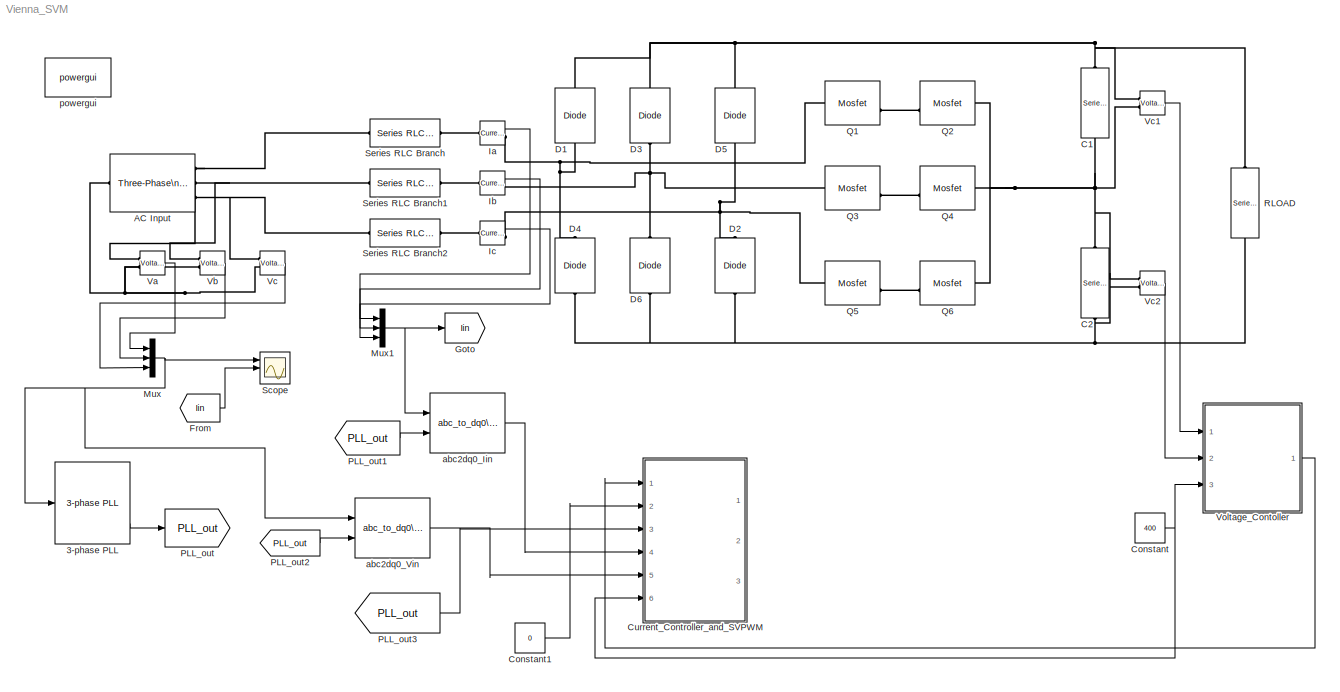
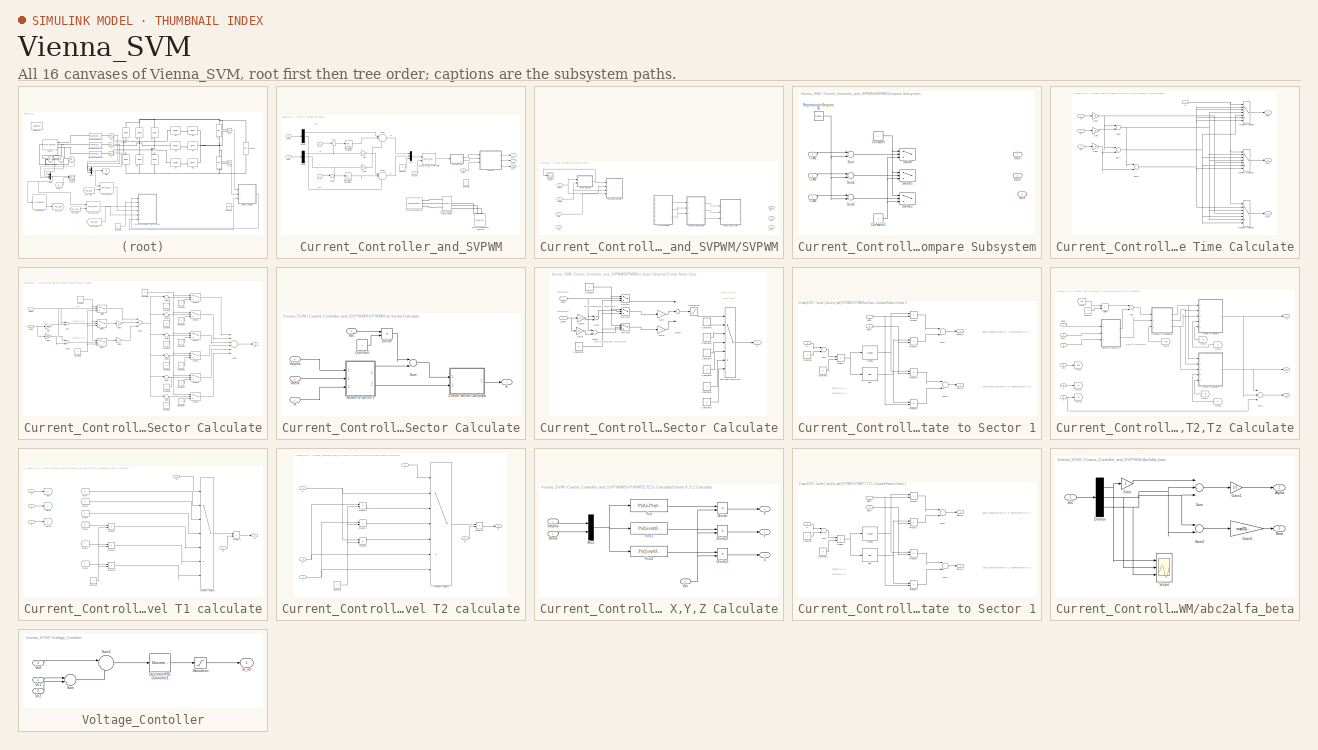
[diagram: thumbnail index - all 16 canvases of the model, root first then tree order]
MODEL Vienna_SVM
KIND model
BLOCK [Reference] 3-phase PLL  REF=powerlib_extras/Control \nBlocks/3-phase PLL
  AGC = off
  DialogController = POWERSYS.PowerSysDialog
  FunctionWithSeparateData = off
  GeneratePreprocessorConditionals = off
  ParK = [ 180 3200 1 ]
  Par_Init = [0 50]
  Ports = [1, 3]
  RTWMemSecDataConstants = Inherit from model
  RTWMemSecDataInternal = Inherit from model
  RTWMemSecDataParameters = Inherit from model
  RTWMemSecFuncExecute = Inherit from model
  RTWMemSecFuncInitTerm = Inherit from model
  SID = 34
  ShowPortLabels = FromPortIcon
  SourceBlock = powerlib_extras/Control \nBlocks/3-phase PLL
  SourceType = 3-phase PLL
  SystemSampleTime = -1
BLOCK [Reference] AC Input  REF=powerlib/Electrical\nSources/Three-Phase\nProgrammable\nVoltage Source
  Amplitudes = [1 0.8 1.2 1.0]
  DialogController = POWERSYS.PowerSysDialog
  FunctionWithSeparateData = off
  GeneratePreprocessorConditionals = off
  HarmonicA = [3 0.2 -25 0]
  HarmonicB = [2 0.15 35 2]
  HarmonicGeneration = off
  Ports = [0, 0, 0, 0, 0, 1, 3]
  PositiveSequence = [190  0 50]
  RTWMemSecDataConstants = Inherit from model
  RTWMemSecDataInternal = Inherit from model
  RTWMemSecDataParameters = Inherit from model
  RTWMemSecFuncExecute = Inherit from model
  RTWMemSecFuncInitTerm = Inherit from model
  SID = 6
  ShowPortLabels = FromPortIcon
  SourceBlock = powerlib/Electrical\nSources/Three-Phase\nProgrammable\nVoltage Source
  SourceType = Three-Phase Programmable Voltage Source
  SystemSampleTime = -1
  TimeValues = [0 0.1 0.15 0.2]
  Timing = [0.05  3]
  VariationEntity = None
  VariationFrequency = 2
  VariationMagnitude = 0.3
  VariationPhaseA = off
  VariationRate = 10
  VariationStep = 0.5
  VariationTiming = [1 2]
  VariationType = Step
BLOCK [Reference] C1  REF=powerlib/Elements/Series RLC Branch
  BranchType = C
  Capacitance = 1e-3
  DialogController = POWERSYS.PowerSysDialog
  Inductance = 1e-3
  InitialCurrent = 0
  InitialVoltage = 0
  LConnTagsString = __new0
  LeftPortType = p1
  Measurements = None
  PhysicalDomain = powersysdomain
  Ports = [0, 0, 0, 0, 0, 1, 1]
  RConnTagsString = __new0
  Resistance = 1
  RightPortType = p1
  SID = 32
  SetiL0 = off
  Setx0 = off
  SourceBlock = powerlib/Elements/Series RLC Branch
  SourceType = Series RLC Branch
  SubClassName = unknown
BLOCK [Reference] C2  REF=powerlib/Elements/Series RLC Branch
  BranchType = C
  Capacitance = 1e-3
  DialogController = POWERSYS.PowerSysDialog
  Inductance = 1e-3
  InitialCurrent = 0
  InitialVoltage = 0
  LConnTagsString = __new0
  LeftPortType = p1
  Measurements = None
  PhysicalDomain = powersysdomain
  Ports = [0, 0, 0, 0, 0, 1, 1]
  RConnTagsString = __new0
  Resistance = 1
  RightPortType = p1
  SID = 33
  SetiL0 = off
  Setx0 = off
  SourceBlock = powerlib/Elements/Series RLC Branch
  SourceType = Series RLC Branch
  SubClassName = unknown
BLOCK [Constant] Constant
  SID = 57
  Value = 400
BLOCK [Constant] Constant1
  SID = 110
  Value = 0
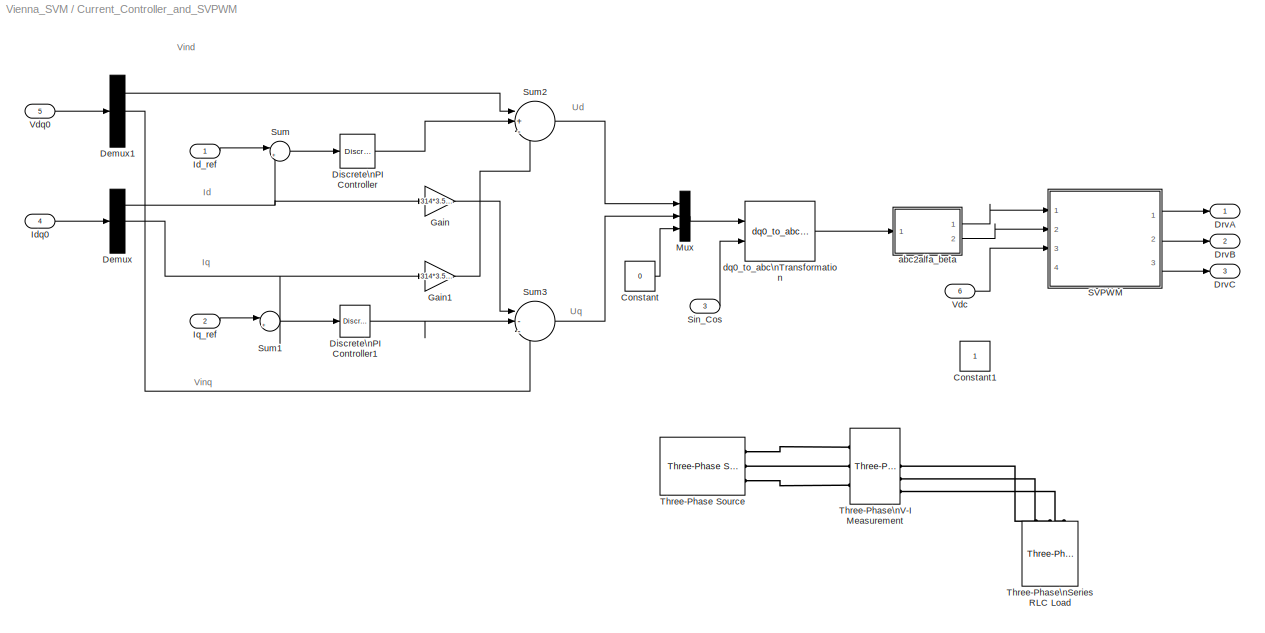
BLOCK [SubSystem] Current_Controller_and_SVPWM
  FunctionWithSeparateData = off
  MaskHideContents = off
  MinAlgLoopOccurrences = off
  Opaque = off
  Ports = [6, 3]
  PropExecContextOutsideSubsystem = off
  RTWSystemCode = Auto
  RequestExecContextInheritance = off
  SID = 58
BLOCK [Constant] Current_Controller_and_SVPWM/Constant
  SID = 80
  Value = 0
BLOCK [Constant] Current_Controller_and_SVPWM/Constant1
  SID = 206
BLOCK [Demux] Current_Controller_and_SVPWM/Demux
  DisplayOption = bar
  Outputs = 3
  Ports = [1, 3]
  SID = 103
BLOCK [Demux] Current_Controller_and_SVPWM/Demux1
  DisplayOption = bar
  Outputs = 3
  Ports = [1, 3]
  SID = 104
BLOCK [Reference] Current_Controller_and_SVPWM/Discrete\nPI Controller  REF=powerlib_extras/Discrete \nControl Blocks/Discrete\nPI Controller
  DialogController = POWERSYS.PowerSysDialog
  FunctionWithSeparateData = off
  GeneratePreprocessorConditionals = off
  Init = 0
  Ki = 1
  Kp = 0.1
  Par_Limits = [1e6 -1e6]
  Ports = [1, 1]
  RTWMemSecDataConstants = Inherit from model
  RTWMemSecDataInternal = Inherit from model
  RTWMemSecDataParameters = Inherit from model
  RTWMemSecFuncExecute = Inherit from model
  RTWMemSecFuncInitTerm = Inherit from model
  SID = 64
  ShowPortLabels = FromPortIcon
  SourceBlock = powerlib_extras/Discrete \nControl Blocks/Discrete\nPI Controller
  SourceType = Discrete PI Controller
  SystemSampleTime = -1
  Ts = 50e-6
BLOCK [Reference] Current_Controller_and_SVPWM/Discrete\nPI Controller1  REF=powerlib_extras/Discrete \nControl Blocks/Discrete\nPI Controller
  DialogController = POWERSYS.PowerSysDialog
  FunctionWithSeparateData = off
  GeneratePreprocessorConditionals = off
  Init = 0
  Ki = 1
  Kp = 0.1
  Par_Limits = [1e6 -1e6]
  Ports = [1, 1]
  RTWMemSecDataConstants = Inherit from model
  RTWMemSecDataInternal = Inherit from model
  RTWMemSecDataParameters = Inherit from model
  RTWMemSecFuncExecute = Inherit from model
  RTWMemSecFuncInitTerm = Inherit from model
  SID = 68
  ShowPortLabels = FromPortIcon
  SourceBlock = powerlib_extras/Discrete \nControl Blocks/Discrete\nPI Controller
  SourceType = Discrete PI Controller
  SystemSampleTime = -1
  Ts = 50e-6
BLOCK [Outport] Current_Controller_and_SVPWM/DrvA
  IconDisplay = Port number
  SID = 60
BLOCK [Outport] Current_Controller_and_SVPWM/DrvB
  IconDisplay = Port number
  Port = 2
  SID = 107
BLOCK [Outport] Current_Controller_and_SVPWM/DrvC
  IconDisplay = Port number
  Port = 3
  SID = 108
BLOCK [Gain] Current_Controller_and_SVPWM/Gain
  Gain = 314*3.5e-3
  OutDataTypeStr = Inherit: Inherit via internal rule
  ParamDataTypeStr = Inherit: Inherit via internal rule
  SID = 71
  SaturateOnIntegerOverflow = off
BLOCK [Gain] Current_Controller_and_SVPWM/Gain1
  Gain = 314*3.5e-3
  OutDataTypeStr = Inherit: Inherit via internal rule
  ParamDataTypeStr = Inherit: Inherit via internal rule
  SID = 72
  SaturateOnIntegerOverflow = off
BLOCK [Inport] Current_Controller_and_SVPWM/Id_ref
  IconDisplay = Port number
  SID = 59
BLOCK [Inport] Current_Controller_and_SVPWM/Idq0
  IconDisplay = Port number
  Port = 4
  SID = 105
BLOCK [Inport] Current_Controller_and_SVPWM/Iq_ref
  IconDisplay = Port number
  Port = 2
  SID = 65
BLOCK [Mux] Current_Controller_and_SVPWM/Mux
  DisplayOption = bar
  Inputs = 3
  Ports = [3, 1]
  SID = 79
BLOCK [SubSystem] Current_Controller_and_SVPWM/SVPWM
  FunctionWithSeparateData = off
  MaskHideContents = off
  MinAlgLoopOccurrences = off
  Opaque = off
  Ports = [4, 3]
  PropExecContextOutsideSubsystem = off
  RTWSystemCode = Auto
  RequestExecContextInheritance = off
  SID = 97
BLOCK [SubSystem] Current_Controller_and_SVPWM/SVPWM/Compare Subsystem
  FunctionWithSeparateData = off
  MaskHideContents = off
  MinAlgLoopOccurrences = off
  Opaque = off
  Ports = [3, 3]
  PropExecContextOutsideSubsystem = off
  RTWSystemCode = Auto
  RequestExecContextInheritance = off
  SID = 430
BLOCK [Constant] Current_Controller_and_SVPWM/SVPWM/Compare Subsystem/Constant
  SID = 444
BLOCK [Constant] Current_Controller_and_SVPWM/SVPWM/Compare Subsystem/Constant1
  SID = 445
  Value = 0
BLOCK [Outport] Current_Controller_and_SVPWM/SVPWM/Compare Subsystem/Out1
  IconDisplay = Port number
  SID = 432
BLOCK [Outport] Current_Controller_and_SVPWM/SVPWM/Compare Subsystem/Out2
  IconDisplay = Port number
  Port = 2
  SID = 435
BLOCK [Outport] Current_Controller_and_SVPWM/SVPWM/Compare Subsystem/Out3
  IconDisplay = Port number
  Port = 3
  SID = 436
BLOCK [Reference] Current_Controller_and_SVPWM/SVPWM/Compare Subsystem/Repeating\nSequence  REF=simulink/Sources/Repeating\nSequence
  FunctionWithSeparateData = off
  GeneratePreprocessorConditionals = off
  Ports = [0, 1]
  RTWMemSecDataConstants = Inherit from model
  RTWMemSecDataInternal = Inherit from model
  RTWMemSecDataParameters = Inherit from model
  RTWMemSecFuncExecute = Inherit from model
  RTWMemSecFuncInitTerm = Inherit from model
  SID = 437
  ShowPortLabels = FromPortIcon
  SourceBlock = simulink/Sources/Repeating\nSequence
  SourceType = Repeating table
  SystemSampleTime = -1
  rep_seq_t = [0 1/40000 1/20000]
  rep_seq_y = [0 1/40000 0]
BLOCK [Sum] Current_Controller_and_SVPWM/SVPWM/Compare Subsystem/Sum
  InputSameDT = off
  Inputs = |-+
  OutDataTypeStr = Inherit: Inherit via internal rule
  Ports = [2, 1]
  SID = 438
  SaturateOnIntegerOverflow = off
BLOCK [Sum] Current_Controller_and_SVPWM/SVPWM/Compare Subsystem/Sum1
  InputSameDT = off
  Inputs = |-+
  OutDataTypeStr = Inherit: Inherit via internal rule
  Ports = [2, 1]
  SID = 439
  SaturateOnIntegerOverflow = off
BLOCK [Sum] Current_Controller_and_SVPWM/SVPWM/Compare Subsystem/Sum2
  InputSameDT = off
  Inputs = |-+
  OutDataTypeStr = Inherit: Inherit via internal rule
  Ports = [2, 1]
  SID = 440
  SaturateOnIntegerOverflow = off
BLOCK [Switch] Current_Controller_and_SVPWM/SVPWM/Compare Subsystem/Switch
  InputSameDT = off
  SID = 441
  SaturateOnIntegerOverflow = off
BLOCK [Switch] Current_Controller_and_SVPWM/SVPWM/Compare Subsystem/Switch1
  InputSameDT = off
  SID = 442
  SaturateOnIntegerOverflow = off
BLOCK [Switch] Current_Controller_and_SVPWM/SVPWM/Compare Subsystem/Switch2
  InputSameDT = off
  SID = 443
  SaturateOnIntegerOverflow = off
BLOCK [Inport] Current_Controller_and_SVPWM/SVPWM/Compare Subsystem/TCM1
  IconDisplay = Port number
  SID = 431
BLOCK [Inport] Current_Controller_and_SVPWM/SVPWM/Compare Subsystem/TCM2
  IconDisplay = Port number
  Port = 2
  SID = 433
BLOCK [Inport] Current_Controller_and_SVPWM/SVPWM/Compare Subsystem/TCM3
  IconDisplay = Port number
  Port = 3
  SID = 434
BLOCK [SubSystem] Current_Controller_and_SVPWM/SVPWM/Compare Time Calculate
  FunctionWithSeparateData = off
  MaskHideContents = off
  MinAlgLoopOccurrences = off
  Opaque = off
  Ports = [4, 3]
  PropExecContextOutsideSubsystem = off
  RTWSystemCode = Auto
  RequestExecContextInheritance = off
  SID = 402
BLOCK [Gain] Current_Controller_and_SVPWM/SVPWM/Compare Time Calculate/Gain
  Gain = 1/2
  OutDataTypeStr = Inherit: Inherit via internal rule
  ParamDataTypeStr = Inherit: Inherit via internal rule
  SID = 407
  SaturateOnIntegerOverflow = off
BLOCK [Gain] Current_Controller_and_SVPWM/SVPWM/Compare Time Calculate/Gain1
  Gain = 1/2
  OutDataTypeStr = Inherit: Inherit via internal rule
  ParamDataTypeStr = Inherit: Inherit via internal rule
  SID = 408
  SaturateOnIntegerOverflow = off
BLOCK [Gain] Current_Controller_and_SVPWM/SVPWM/Compare Time Calculate/Gain2
  Gain = 1/4
  OutDataTypeStr = Inherit: Inherit via internal rule
  ParamDataTypeStr = Inherit: Inherit via internal rule
  SID = 409
  SaturateOnIntegerOverflow = off
BLOCK [Inport] Current_Controller_and_SVPWM/SVPWM/Compare Time Calculate/K
  IconDisplay = Port number
  Port = 4
  SID = 420
BLOCK [MultiPortSwitch] Current_Controller_and_SVPWM/SVPWM/Compare Time Calculate/Multiport\nSwitch
  InputSameDT = off
  Inputs = 6
  Ports = [7, 1]
  SID = 417
  SaturateOnIntegerOverflow = off
  zeroidx = off
BLOCK [MultiPortSwitch] Current_Controller_and_SVPWM/SVPWM/Compare Time Calculate/Multiport\nSwitch1
  InputSameDT = off
  Inputs = 6
  Ports = [7, 1]
  SID = 418
  SaturateOnIntegerOverflow = off
  zeroidx = off
BLOCK [MultiPortSwitch] Current_Controller_and_SVPWM/SVPWM/Compare Time Calculate/Multiport\nSwitch2
  InputSameDT = off
  Inputs = 6
  Ports = [7, 1]
  SID = 419
  SaturateOnIntegerOverflow = off
  zeroidx = off
BLOCK [Sum] Current_Controller_and_SVPWM/SVPWM/Compare Time Calculate/Sum
  InputSameDT = off
  Inputs = |++
  OutDataTypeStr = Inherit: Inherit via internal rule
  Ports = [2, 1]
  SID = 410
  SaturateOnIntegerOverflow = off
BLOCK [Sum] Current_Controller_and_SVPWM/SVPWM/Compare Time Calculate/Sum1
  InputSameDT = off
  Inputs = |++
  OutDataTypeStr = Inherit: Inherit via internal rule
  Ports = [2, 1]
  SID = 411
  SaturateOnIntegerOverflow = off
BLOCK [Sum] Current_Controller_and_SVPWM/SVPWM/Compare Time Calculate/Sum2
  InputSameDT = off
  Inputs = |++
  OutDataTypeStr = Inherit: Inherit via internal rule
  Ports = [2, 1]
  SID = 412
  SaturateOnIntegerOverflow = off
BLOCK [Inport] Current_Controller_and_SVPWM/SVPWM/Compare Time Calculate/T1
  IconDisplay = Port number
  SID = 403
BLOCK [Inport] Current_Controller_and_SVPWM/SVPWM/Compare Time Calculate/T2
  IconDisplay = Port number
  Port = 2
  SID = 405
BLOCK [Outport] Current_Controller_and_SVPWM/SVPWM/Compare Time Calculate/TCM1
  IconDisplay = Port number
  SID = 404
BLOCK [Outport] Current_Controller_and_SVPWM/SVPWM/Compare Time Calculate/TCM2
  IconDisplay = Port number
  Port = 2
  SID = 428
BLOCK [Outport] Current_Controller_and_SVPWM/SVPWM/Compare Time Calculate/TCM3
  IconDisplay = Port number
  Port = 3
  SID = 429
BLOCK [Inport] Current_Controller_and_SVPWM/SVPWM/Compare Time Calculate/Tz
  IconDisplay = Port number
  Port = 3
  SID = 406
BLOCK [Outport] Current_Controller_and_SVPWM/SVPWM/DrvA
  IconDisplay = Port number
  SID = 99
BLOCK [Outport] Current_Controller_and_SVPWM/SVPWM/DrvB
  IconDisplay = Port number
  Port = 2
  SID = 101
BLOCK [Outport] Current_Controller_and_SVPWM/SVPWM/DrvC
  IconDisplay = Port number
  Port = 3
  SID = 102
BLOCK [Scope] Current_Controller_and_SVPWM/SVPWM/Scope
  DataFormat = StructureWithTime
  Floating = off
  NumInputPorts = 1
  Ports = [1]
  SID = 154
  SampleTime = 0
  SaveName = ScopeData1
  ZoomMode = xonly
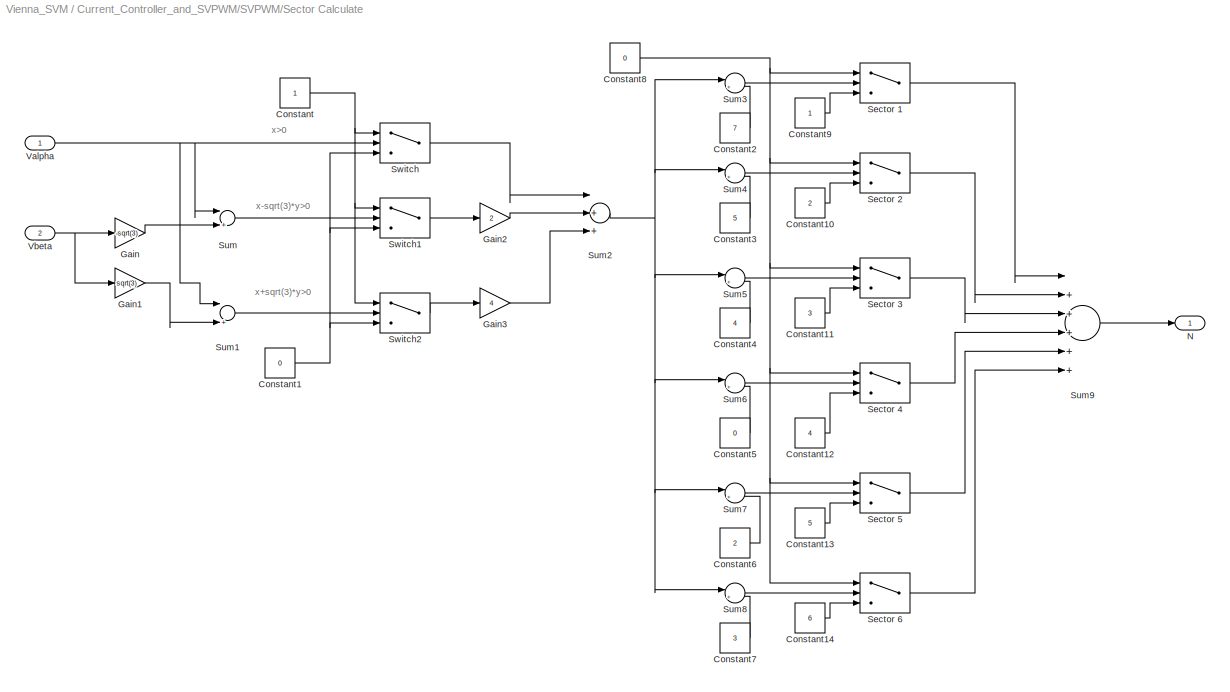
BLOCK [SubSystem] Current_Controller_and_SVPWM/SVPWM/Sector Calculate
  FunctionWithSeparateData = off
  MaskHideContents = off
  MinAlgLoopOccurrences = off
  Opaque = off
  Ports = [2, 1]
  PropExecContextOutsideSubsystem = off
  RTWSystemCode = Auto
  RequestExecContextInheritance = off
  SID = 111
BLOCK [Constant] Current_Controller_and_SVPWM/SVPWM/Sector Calculate/Constant
  SID = 123
BLOCK [Constant] Current_Controller_and_SVPWM/SVPWM/Sector Calculate/Constant1
  SID = 124
  Value = 0
BLOCK [Constant] Current_Controller_and_SVPWM/SVPWM/Sector Calculate/Constant10
  SID = 181
  Value = 2
BLOCK [Constant] Current_Controller_and_SVPWM/SVPWM/Sector Calculate/Constant11
  SID = 182
  Value = 3
BLOCK [Constant] Current_Controller_and_SVPWM/SVPWM/Sector Calculate/Constant12
  SID = 183
  Value = 4
BLOCK [Constant] Current_Controller_and_SVPWM/SVPWM/Sector Calculate/Constant13
  SID = 184
  Value = 5
BLOCK [Constant] Current_Controller_and_SVPWM/SVPWM/Sector Calculate/Constant14
  SID = 185
  Value = 6
BLOCK [Constant] Current_Controller_and_SVPWM/SVPWM/Sector Calculate/Constant2
  SID = 173
  Value = 7
BLOCK [Constant] Current_Controller_and_SVPWM/SVPWM/Sector Calculate/Constant3
  SID = 174
  Value = 5
BLOCK [Constant] Current_Controller_and_SVPWM/SVPWM/Sector Calculate/Constant4
  SID = 175
  Value = 4
BLOCK [Constant] Current_Controller_and_SVPWM/SVPWM/Sector Calculate/Constant5
  SID = 176
  Value = 0
BLOCK [Constant] Current_Controller_and_SVPWM/SVPWM/Sector Calculate/Constant6
  SID = 177
  Value = 2
BLOCK [Constant] Current_Controller_and_SVPWM/SVPWM/Sector Calculate/Constant7
  SID = 178
  Value = 3
BLOCK [Constant] Current_Controller_and_SVPWM/SVPWM/Sector Calculate/Constant8
  SID = 179
  Value = 0
BLOCK [Constant] Current_Controller_and_SVPWM/SVPWM/Sector Calculate/Constant9
  SID = 180
BLOCK [Gain] Current_Controller_and_SVPWM/SVPWM/Sector Calculate/Gain
  Gain = -sqrt(3)
  OutDataTypeStr = Inherit: Inherit via internal rule
  ParamDataTypeStr = Inherit: Inherit via internal rule
  SID = 121
  SaturateOnIntegerOverflow = off
BLOCK [Gain] Current_Controller_and_SVPWM/SVPWM/Sector Calculate/Gain1
  Gain = sqrt(3)
  OutDataTypeStr = Inherit: Inherit via internal rule
  ParamDataTypeStr = Inherit: Inherit via internal rule
  SID = 122
  SaturateOnIntegerOverflow = off
BLOCK [Gain] Current_Controller_and_SVPWM/SVPWM/Sector Calculate/Gain2
  Gain = 2
  OutDataTypeStr = Inherit: Inherit via internal rule
  ParamDataTypeStr = Inherit: Inherit via internal rule
  SID = 125
  SaturateOnIntegerOverflow = off
BLOCK [Gain] Current_Controller_and_SVPWM/SVPWM/Sector Calculate/Gain3
  Gain = 4
  OutDataTypeStr = Inherit: Inherit via internal rule
  ParamDataTypeStr = Inherit: Inherit via internal rule
  SID = 126
  SaturateOnIntegerOverflow = off
BLOCK [Outport] Current_Controller_and_SVPWM/SVPWM/Sector Calculate/N
  IconDisplay = Port number
  SID = 113
BLOCK [Switch] Current_Controller_and_SVPWM/SVPWM/Sector Calculate/Sector 1
  Criteria = u2 ~= 0
  InputSameDT = off
  SID = 160
  SaturateOnIntegerOverflow = off
BLOCK [Switch] Current_Controller_and_SVPWM/SVPWM/Sector Calculate/Sector 2
  Criteria = u2 ~= 0
  InputSameDT = off
  SID = 161
  SaturateOnIntegerOverflow = off
BLOCK [Switch] Current_Controller_and_SVPWM/SVPWM/Sector Calculate/Sector 3
  Criteria = u2 ~= 0
  InputSameDT = off
  SID = 162
  SaturateOnIntegerOverflow = off
BLOCK [Switch] Current_Controller_and_SVPWM/SVPWM/Sector Calculate/Sector 4
  Criteria = u2 ~= 0
  InputSameDT = off
  SID = 163
  SaturateOnIntegerOverflow = off
BLOCK [Switch] Current_Controller_and_SVPWM/SVPWM/Sector Calculate/Sector 5
  Criteria = u2 ~= 0
  InputSameDT = off
  SID = 164
  SaturateOnIntegerOverflow = off
BLOCK [Switch] Current_Controller_and_SVPWM/SVPWM/Sector Calculate/Sector 6
  Criteria = u2 ~= 0
  InputSameDT = off
  SID = 165
  SaturateOnIntegerOverflow = off
BLOCK [Sum] Current_Controller_and_SVPWM/SVPWM/Sector Calculate/Sum
  InputSameDT = off
  Inputs = |+-
  OutDataTypeStr = Inherit: Inherit via internal rule
  Ports = [2, 1]
  SID = 117
  SaturateOnIntegerOverflow = off
BLOCK [Sum] Current_Controller_and_SVPWM/SVPWM/Sector Calculate/Sum1
  InputSameDT = off
  Inputs = |+-
  OutDataTypeStr = Inherit: Inherit via internal rule
  Ports = [2, 1]
  SID = 118
  SaturateOnIntegerOverflow = off
BLOCK [Sum] Current_Controller_and_SVPWM/SVPWM/Sector Calculate/Sum2
  InputSameDT = off
  Inputs = |+++
  OutDataTypeStr = Inherit: Inherit via internal rule
  Ports = [3, 1]
  SID = 127
  SaturateOnIntegerOverflow = off
BLOCK [Sum] Current_Controller_and_SVPWM/SVPWM/Sector Calculate/Sum3
  IconShape = round
  InputSameDT = off
  Inputs = |+-
  OutDataTypeStr = Inherit: Inherit via internal rule
  Ports = [2, 1]
  SID = 166
  SaturateOnIntegerOverflow = off
BLOCK [Sum] Current_Controller_and_SVPWM/SVPWM/Sector Calculate/Sum4
  IconShape = round
  InputSameDT = off
  Inputs = |+-
  OutDataTypeStr = Inherit: Inherit via internal rule
  Ports = [2, 1]
  SID = 167
  SaturateOnIntegerOverflow = off
BLOCK [Sum] Current_Controller_and_SVPWM/SVPWM/Sector Calculate/Sum5
  IconShape = round
  InputSameDT = off
  Inputs = |+-
  OutDataTypeStr = Inherit: Inherit via internal rule
  Ports = [2, 1]
  SID = 168
  SaturateOnIntegerOverflow = off
BLOCK [Sum] Current_Controller_and_SVPWM/SVPWM/Sector Calculate/Sum6
  IconShape = round
  InputSameDT = off
  Inputs = |+-
  OutDataTypeStr = Inherit: Inherit via internal rule
  Ports = [2, 1]
  SID = 169
  SaturateOnIntegerOverflow = off
BLOCK [Sum] Current_Controller_and_SVPWM/SVPWM/Sector Calculate/Sum7
  IconShape = round
  InputSameDT = off
  Inputs = |+-
  OutDataTypeStr = Inherit: Inherit via internal rule
  Ports = [2, 1]
  SID = 170
  SaturateOnIntegerOverflow = off
BLOCK [Sum] Current_Controller_and_SVPWM/SVPWM/Sector Calculate/Sum8
  IconShape = round
  InputSameDT = off
  Inputs = |+-
  OutDataTypeStr = Inherit: Inherit via internal rule
  Ports = [2, 1]
  SID = 171
  SaturateOnIntegerOverflow = off
BLOCK [Sum] Current_Controller_and_SVPWM/SVPWM/Sector Calculate/Sum9
  InputSameDT = off
  Inputs = |++++++
  OutDataTypeStr = Inherit: Inherit via internal rule
  Ports = [6, 1]
  SID = 186
  SaturateOnIntegerOverflow = off
BLOCK [Switch] Current_Controller_and_SVPWM/SVPWM/Sector Calculate/Switch
  InputSameDT = off
  SID = 116
  SaturateOnIntegerOverflow = off
BLOCK [Switch] Current_Controller_and_SVPWM/SVPWM/Sector Calculate/Switch1
  InputSameDT = off
  SID = 119
  SaturateOnIntegerOverflow = off
BLOCK [Switch] Current_Controller_and_SVPWM/SVPWM/Sector Calculate/Switch2
  InputSameDT = off
  SID = 120
  SaturateOnIntegerOverflow = off
BLOCK [Inport] Current_Controller_and_SVPWM/SVPWM/Sector Calculate/Valpha
  IconDisplay = Port number
  SID = 112
BLOCK [Inport] Current_Controller_and_SVPWM/SVPWM/Sector Calculate/Vbeta
  IconDisplay = Port number
  Port = 2
  SID = 114
BLOCK [SubSystem] Current_Controller_and_SVPWM/SVPWM/Sub Sector Calculate
  FunctionWithSeparateData = off
  MaskHideContents = off
  MinAlgLoopOccurrences = off
  Opaque = off
  Ports = [4, 1]
  PropExecContextOutsideSubsystem = off
  RTWSystemCode = Auto
  RequestExecContextInheritance = off
  SID = 208
BLOCK [SubSystem] Current_Controller_and_SVPWM/SVPWM/Sub Sector Calculate/2-level Sector Calculate
  FunctionWithSeparateData = off
  MaskHideContents = off
  MinAlgLoopOccurrences = off
  Opaque = off
  Ports = [2, 1]
  PropExecContextOutsideSubsystem = off
  RTWSystemCode = Auto
  RequestExecContextInheritance = off
  SID = 234
BLOCK [Constant] Current_Controller_and_SVPWM/SVPWM/Sub Sector Calculate/2-level Sector Calculate/Constant
  SID = 237
BLOCK [Constant] Current_Controller_and_SVPWM/SVPWM/Sub Sector Calculate/2-level Sector Calculate/Constant1
  SID = 238
  Value = 0
BLOCK [Constant] Current_Controller_and_SVPWM/SVPWM/Sub Sector Calculate/2-level Sector Calculate/Constant2
  SID = 252
  Value = 2
BLOCK [Constant] Current_Controller_and_SVPWM/SVPWM/Sub Sector Calculate/2-level Sector Calculate/Constant3
  SID = 253
  Value = 6
BLOCK [Constant] Current_Controller_and_SVPWM/SVPWM/Sub Sector Calculate/2-level Sector Calculate/Constant4
  SID = 254
BLOCK [Constant] Current_Controller_and_SVPWM/SVPWM/Sub Sector Calculate/2-level Sector Calculate/Constant5
  SID = 255
  Value = 4
BLOCK [Constant] Current_Controller_and_SVPWM/SVPWM/Sub Sector Calculate/2-level Sector Calculate/Constant6
  SID = 256
  Value = 3
BLOCK [Constant] Current_Controller_and_SVPWM/SVPWM/Sub Sector Calculate/2-level Sector Calculate/Constant7
  SID = 257
  Value = 5
BLOCK [Gain] Current_Controller_and_SVPWM/SVPWM/Sub Sector Calculate/2-level Sector Calculate/Gain
  Gain = 2
  SID = 239
BLOCK [Gain] Current_Controller_and_SVPWM/SVPWM/Sub Sector Calculate/2-level Sector Calculate/Gain1
  Gain = 4
  SID = 240
BLOCK [Gain] Current_Controller_and_SVPWM/SVPWM/Sub Sector Calculate/2-level Sector Calculate/Gain2
  Gain = sqrt(3)
  SID = 241
BLOCK [Gain] Current_Controller_and_SVPWM/SVPWM/Sub Sector Calculate/2-level Sector Calculate/Gain3
  Gain = -sqrt(3)
  SID = 242
BLOCK [Outport] Current_Controller_and_SVPWM/SVPWM/Sub Sector Calculate/2-level Sector Calculate/K
  IconDisplay = Port number
  SID = 250
BLOCK [MultiPortSwitch] Current_Controller_and_SVPWM/SVPWM/Sub Sector Calculate/2-level Sector Calculate/Multiport\nSwitch
  InputSameDT = off
  Inputs = 6
  Ports = [7, 1]
  SID = 251
  SaturateOnIntegerOverflow = off
  zeroidx = off
BLOCK [Saturate] Current_Controller_and_SVPWM/SVPWM/Sub Sector Calculate/2-level Sector Calculate/Saturation
  InputPortMap = u0
  LowerLimit = 1
  Ports = [1, 1]
  SID = 243
  UpperLimit = 6
BLOCK [Sum] Current_Controller_and_SVPWM/SVPWM/Sub Sector Calculate/2-level Sector Calculate/Sum
  InputSameDT = off
  Inputs = -+
  OutDataTypeStr = Inherit: Inherit via internal rule
  Ports = [2, 1]
  SID = 244
BLOCK [Sum] Current_Controller_and_SVPWM/SVPWM/Sub Sector Calculate/2-level Sector Calculate/Sum1
  InputSameDT = off
  Inputs = -+
  OutDataTypeStr = Inherit: Inherit via internal rule
  Ports = [2, 1]
  SID = 245
BLOCK [Sum] Current_Controller_and_SVPWM/SVPWM/Sub Sector Calculate/2-level Sector Calculate/Sum2
  InputSameDT = off
  Inputs = +++
  OutDataTypeStr = Inherit: Inherit via internal rule
  Ports = [3, 1]
  SID = 246
BLOCK [Switch] Current_Controller_and_SVPWM/SVPWM/Sub Sector Calculate/2-level Sector Calculate/Switch
  InputSameDT = off
  SID = 247
BLOCK [Switch] Current_Controller_and_SVPWM/SVPWM/Sub Sector Calculate/2-level Sector Calculate/Switch1
  InputSameDT = off
  SID = 248
BLOCK [Switch] Current_Controller_and_SVPWM/SVPWM/Sub Sector Calculate/2-level Sector Calculate/Switch2
  InputSameDT = off
  SID = 249
BLOCK [Inport] Current_Controller_and_SVPWM/SVPWM/Sub Sector Calculate/2-level Sector Calculate/alpha
  IconDisplay = Port number
  SID = 236
BLOCK [Inport] Current_Controller_and_SVPWM/SVPWM/Sub Sector Calculate/2-level Sector Calculate/bata
  IconDisplay = Port number
  Port = 2
  SID = 235
BLOCK [Constant] Current_Controller_and_SVPWM/SVPWM/Sub Sector Calculate/Constant
  SID = 262
  Value = 3
BLOCK [Product] Current_Controller_and_SVPWM/SVPWM/Sub Sector Calculate/Divide
  InputSameDT = off
  Inputs = */
  OutDataTypeStr = Inherit: Inherit via internal rule
  Ports = [2, 1]
  RndMeth = Floor
  SID = 261
  SaturateOnIntegerOverflow = off
BLOCK [Outport] Current_Controller_and_SVPWM/SVPWM/Sub Sector Calculate/K
  IconDisplay = Port number
  SID = 210
BLOCK [Inport] Current_Controller_and_SVPWM/SVPWM/Sub Sector Calculate/N
  IconDisplay = Port number
  SID = 209
BLOCK [SubSystem] Current_Controller_and_SVPWM/SVPWM/Sub Sector Calculate/Rotate to Sector 1
  FunctionWithSeparateData = off
  MaskHideContents = off
  MinAlgLoopOccurrences = off
  Opaque = off
  Ports = [3, 2]
  PropExecContextOutsideSubsystem = off
  RTWSystemCode = Auto
  RequestExecContextInheritance = off
  SID = 213
BLOCK [Inport] Current_Controller_and_SVPWM/SVPWM/Sub Sector Calculate/Rotate to Sector 1/Beta
  IconDisplay = Port number
  Port = 2
  SID = 216
BLOCK [Constant] Current_Controller_and_SVPWM/SVPWM/Sub Sector Calculate/Rotate to Sector 1/Constant
  SID = 219
BLOCK [Constant] Current_Controller_and_SVPWM/SVPWM/Sub Sector Calculate/Rotate to Sector 1/Constant1
  SID = 227
  Value = 6
BLOCK [Reference] Current_Controller_and_SVPWM/SVPWM/Sub Sector Calculate/Rotate to Sector 1/Cosine  REF=simulink/Lookup\nTables/Cosine
  Formula = cos(2*pi*u)
  FunctionWithSeparateData = off
  GeneratePreprocessorConditionals = off
  NumDataPoints = (2^5)+1
  OutputWordLength = 16
  Ports = [1, 1]
  RTWMemSecDataConstants = Inherit from model
  RTWMemSecDataInternal = Inherit from model
  RTWMemSecDataParameters = Inherit from model
  RTWMemSecFuncExecute = Inherit from model
  RTWMemSecFuncInitTerm = Inherit from model
  SID = 222
  ShowPortLabels = FromPortIcon
  SourceBlock = simulink/Lookup\nTables/Cosine
  SourceType = Sine and Cosine
  SystemSampleTime = -1
BLOCK [Product] Current_Controller_and_SVPWM/SVPWM/Sub Sector Calculate/Rotate to Sector 1/Divide1
  InputSameDT = off
  Inputs = */
  OutDataTypeStr = Inherit: Inherit via internal rule
  Ports = [2, 1]
  RndMeth = Floor
  SID = 226
  SaturateOnIntegerOverflow = off
BLOCK [Inport] Current_Controller_and_SVPWM/SVPWM/Sub Sector Calculate/Rotate to Sector 1/N
  IconDisplay = Port number
  Port = 3
  SID = 217
BLOCK [Product] Current_Controller_and_SVPWM/SVPWM/Sub Sector Calculate/Rotate to Sector 1/Product
  InputSameDT = off
  OutDataTypeStr = Inherit: Inherit via internal rule
  Ports = [2, 1]
  SID = 228
  SaturateOnIntegerOverflow = off
BLOCK [Product] Current_Controller_and_SVPWM/SVPWM/Sub Sector Calculate/Rotate to Sector 1/Product1
  InputSameDT = off
  OutDataTypeStr = Inherit: Inherit via internal rule
  Ports = [2, 1]
  SID = 229
  SaturateOnIntegerOverflow = off
BLOCK [Product] Current_Controller_and_SVPWM/SVPWM/Sub Sector Calculate/Rotate to Sector 1/Product2
  InputSameDT = off
  OutDataTypeStr = Inherit: Inherit via internal rule
  Ports = [2, 1]
  SID = 230
  SaturateOnIntegerOverflow = off
BLOCK [Product] Current_Controller_and_SVPWM/SVPWM/Sub Sector Calculate/Rotate to Sector 1/Product3
  InputSameDT = off
  OutDataTypeStr = Inherit: Inherit via internal rule
  Ports = [2, 1]
  SID = 231
  SaturateOnIntegerOverflow = off
BLOCK [Reference] Current_Controller_and_SVPWM/SVPWM/Sub Sector Calculate/Rotate to Sector 1/Sine  REF=simulink/Lookup\nTables/Sine
  Formula = sin(2*pi*u)
  FunctionWithSeparateData = off
  GeneratePreprocessorConditionals = off
  NumDataPoints = (2^5)+1
  OutputWordLength = 16
  Ports = [1, 1]
  RTWMemSecDataConstants = Inherit from model
  RTWMemSecDataInternal = Inherit from model
  RTWMemSecDataParameters = Inherit from model
  RTWMemSecFuncExecute = Inherit from model
  RTWMemSecFuncInitTerm = Inherit from model
  SID = 221
  ShowPortLabels = FromPortIcon
  SourceBlock = simulink/Lookup\nTables/Sine
  SourceType = Sine and Cosine
  SystemSampleTime = -1
BLOCK [Sum] Current_Controller_and_SVPWM/SVPWM/Sub Sector Calculate/Rotate to Sector 1/Sum
  InputSameDT = off
  Inputs = |+-
  OutDataTypeStr = Inherit: Inherit via internal rule
  Ports = [2, 1]
  SID = 220
  SaturateOnIntegerOverflow = off
BLOCK [Sum] Current_Controller_and_SVPWM/SVPWM/Sub Sector Calculate/Rotate to Sector 1/Sum1
  InputSameDT = off
  Inputs = |++
  OutDataTypeStr = Inherit: Inherit via internal rule
  Ports = [2, 1]
  SID = 232
  SaturateOnIntegerOverflow = off
BLOCK [Sum] Current_Controller_and_SVPWM/SVPWM/Sub Sector Calculate/Rotate to Sector 1/Sum2
  InputSameDT = off
  Inputs = |+-
  OutDataTypeStr = Inherit: Inherit via internal rule
  Ports = [2, 1]
  SID = 233
  SaturateOnIntegerOverflow = off
BLOCK [Inport] Current_Controller_and_SVPWM/SVPWM/Sub Sector Calculate/Rotate to Sector 1/alpha
  IconDisplay = Port number
  SID = 214
BLOCK [Outport] Current_Controller_and_SVPWM/SVPWM/Sub Sector Calculate/Rotate to Sector 1/alpha_R
  IconDisplay = Port number
  SID = 215
BLOCK [Outport] Current_Controller_and_SVPWM/SVPWM/Sub Sector Calculate/Rotate to Sector 1/beta_R
  IconDisplay = Port number
  Port = 2
  SID = 218
BLOCK [Sum] Current_Controller_and_SVPWM/SVPWM/Sub Sector Calculate/Sum
  InputSameDT = off
  Inputs = |-+
  OutDataTypeStr = Inherit: Inherit via internal rule
  Ports = [2, 1]
  SID = 259
  SaturateOnIntegerOverflow = off
BLOCK [Inport] Current_Controller_and_SVPWM/SVPWM/Sub Sector Calculate/Valpha
  IconDisplay = Port number
  Port = 2
  SID = 211
BLOCK [Inport] Current_Controller_and_SVPWM/SVPWM/Sub Sector Calculate/Vbeta
  IconDisplay = Port number
  Port = 3
  SID = 212
BLOCK [Inport] Current_Controller_and_SVPWM/SVPWM/Sub Sector Calculate/Vdc
  IconDisplay = Port number
  Port = 4
  SID = 258
BLOCK [SubSystem] Current_Controller_and_SVPWM/SVPWM/T1,T2,Tz Calculate
  FunctionWithSeparateData = off
  MaskHideContents = off
  MinAlgLoopOccurrences = off
  Opaque = off
  Ports = [6, 3]
  PropExecContextOutsideSubsystem = off
  RTWSystemCode = Auto
  RequestExecContextInheritance = off
  SID = 263
BLOCK [SubSystem] Current_Controller_and_SVPWM/SVPWM/T1,T2,Tz Calculate/2-level T1 calculate
  FunctionWithSeparateData = off
  MaskHideContents = off
  MinAlgLoopOccurrences = off
  Opaque = off
  Ports = [5, 1]
  PropExecContextOutsideSubsystem = off
  RTWSystemCode = Auto
  RequestExecContextInheritance = off
  SID = 351
BLOCK [Constant] Current_Controller_and_SVPWM/SVPWM/T1,T2,Tz Calculate/2-level T1 calculate/Constant
  SID = 390
  Value = -1
BLOCK [From] Current_Controller_and_SVPWM/SVPWM/T1,T2,Tz Calculate/2-level T1 calculate/From
  GotoTag = Z
  SID = 380
BLOCK [From] Current_Controller_and_SVPWM/SVPWM/T1,T2,Tz Calculate/2-level T1 calculate/From1
  GotoTag = Y
  SID = 381
BLOCK [From] Current_Controller_and_SVPWM/SVPWM/T1,T2,Tz Calculate/2-level T1 calculate/From2
  GotoTag = X
  SID = 382
BLOCK [From] Current_Controller_and_SVPWM/SVPWM/T1,T2,Tz Calculate/2-level T1 calculate/From3
  GotoTag = Z
  SID = 383
BLOCK [From] Current_Controller_and_SVPWM/SVPWM/T1,T2,Tz Calculate/2-level T1 calculate/From4
  GotoTag = Y
  SID = 384
BLOCK [From] Current_Controller_and_SVPWM/SVPWM/T1,T2,Tz Calculate/2-level T1 calculate/From5
  GotoTag = Z
  SID = 385
BLOCK [Goto] Current_Controller_and_SVPWM/SVPWM/T1,T2,Tz Calculate/2-level T1 calculate/Goto
  GotoTag = X
  SID = 377
  TagVisibility = local
BLOCK [Goto] Current_Controller_and_SVPWM/SVPWM/T1,T2,Tz Calculate/2-level T1 calculate/Goto1
  GotoTag = Y
  SID = 378
  TagVisibility = local
BLOCK [Goto] Current_Controller_and_SVPWM/SVPWM/T1,T2,Tz Calculate/2-level T1 calculate/Goto2
  GotoTag = Z
  SID = 379
  TagVisibility = local
BLOCK [Inport] Current_Controller_and_SVPWM/SVPWM/T1,T2,Tz Calculate/2-level T1 calculate/K
  IconDisplay = Port number
  Port = 4
  SID = 359
BLOCK [MultiPortSwitch] Current_Controller_and_SVPWM/SVPWM/T1,T2,Tz Calculate/2-level T1 calculate/Multiport\nSwitch
  InputSameDT = off
  Inputs = 6
  Ports = [7, 1]
  SID = 376
  SaturateOnIntegerOverflow = off
  zeroidx = off
BLOCK [Product] Current_Controller_and_SVPWM/SVPWM/T1,T2,Tz Calculate/2-level T1 calculate/Product
  InputSameDT = off
  OutDataTypeStr = Inherit: Inherit via internal rule
  Ports = [2, 1]
  SID = 387
  SaturateOnIntegerOverflow = off
BLOCK [Product] Current_Controller_and_SVPWM/SVPWM/T1,T2,Tz Calculate/2-level T1 calculate/Product1
  InputSameDT = off
  OutDataTypeStr = Inherit: Inherit via internal rule
  Ports = [2, 1]
  SID = 388
  SaturateOnIntegerOverflow = off
BLOCK [Product] Current_Controller_and_SVPWM/SVPWM/T1,T2,Tz Calculate/2-level T1 calculate/Product2
  InputSameDT = off
  OutDataTypeStr = Inherit: Inherit via internal rule
  Ports = [2, 1]
  SID = 389
  SaturateOnIntegerOverflow = off
BLOCK [Product] Current_Controller_and_SVPWM/SVPWM/T1,T2,Tz Calculate/2-level T1 calculate/Product3
  InputSameDT = off
  OutDataTypeStr = Inherit: Inherit via internal rule
  Ports = [2, 1]
  SID = 391
  SaturateOnIntegerOverflow = off
BLOCK [Outport] Current_Controller_and_SVPWM/SVPWM/T1,T2,Tz Calculate/2-level T1 calculate/T1
  IconDisplay = Port number
  SID = 353
BLOCK [Inport] Current_Controller_and_SVPWM/SVPWM/T1,T2,Tz Calculate/2-level T1 calculate/Ts
  IconDisplay = Port number
  Port = 5
  SID = 360
BLOCK [Inport] Current_Controller_and_SVPWM/SVPWM/T1,T2,Tz Calculate/2-level T1 calculate/X
  IconDisplay = Port number
  SID = 352
BLOCK [Inport] Current_Controller_and_SVPWM/SVPWM/T1,T2,Tz Calculate/2-level T1 calculate/Y
  IconDisplay = Port number
  Port = 2
  SID = 357
BLOCK [Inport] Current_Controller_and_SVPWM/SVPWM/T1,T2,Tz Calculate/2-level T1 calculate/Z
  IconDisplay = Port number
  Port = 3
  SID = 358
BLOCK [SubSystem] Current_Controller_and_SVPWM/SVPWM/T1,T2,Tz Calculate/2-level T2 calculate
  FunctionWithSeparateData = off
  MaskHideContents = off
  MinAlgLoopOccurrences = off
  Opaque = off
  Ports = [5, 1]
  PropExecContextOutsideSubsystem = off
  RTWSystemCode = Auto
  RequestExecContextInheritance = off
  SID = 361
BLOCK [Constant] Current_Controller_and_SVPWM/SVPWM/T1,T2,Tz Calculate/2-level T2 calculate/Constant
  SID = 396
  Value = -1
BLOCK [Inport] Current_Controller_and_SVPWM/SVPWM/T1,T2,Tz Calculate/2-level T2 calculate/K
  IconDisplay = Port number
  Port = 4
  SID = 365
BLOCK [MultiPortSwitch] Current_Controller_and_SVPWM/SVPWM/T1,T2,Tz Calculate/2-level T2 calculate/Multiport\nSwitch
  InputSameDT = off
  Inputs = 6
  Ports = [7, 1]
  SID = 392
  SaturateOnIntegerOverflow = off
  zeroidx = off
BLOCK [Product] Current_Controller_and_SVPWM/SVPWM/T1,T2,Tz Calculate/2-level T2 calculate/Product
  InputSameDT = off
  OutDataTypeStr = Inherit: Inherit via internal rule
  Ports = [2, 1]
  SID = 393
  SaturateOnIntegerOverflow = off
BLOCK [Product] Current_Controller_and_SVPWM/SVPWM/T1,T2,Tz Calculate/2-level T2 calculate/Product1
  InputSameDT = off
  OutDataTypeStr = Inherit: Inherit via internal rule
  Ports = [2, 1]
  SID = 394
  SaturateOnIntegerOverflow = off
BLOCK [Product] Current_Controller_and_SVPWM/SVPWM/T1,T2,Tz Calculate/2-level T2 calculate/Product2
  InputSameDT = off
  OutDataTypeStr = Inherit: Inherit via internal rule
  Ports = [2, 1]
  SID = 395
  SaturateOnIntegerOverflow = off
BLOCK [Product] Current_Controller_and_SVPWM/SVPWM/T1,T2,Tz Calculate/2-level T2 calculate/Product3
  InputSameDT = off
  OutDataTypeStr = Inherit: Inherit via internal rule
  Ports = [2, 1]
  SID = 397
  SaturateOnIntegerOverflow = off
BLOCK [Outport] Current_Controller_and_SVPWM/SVPWM/T1,T2,Tz Calculate/2-level T2 calculate/T2
  IconDisplay = Port number
  SID = 367
BLOCK [Inport] Current_Controller_and_SVPWM/SVPWM/T1,T2,Tz Calculate/2-level T2 calculate/Ts
  IconDisplay = Port number
  Port = 5
  SID = 366
BLOCK [Inport] Current_Controller_and_SVPWM/SVPWM/T1,T2,Tz Calculate/2-level T2 calculate/X
  IconDisplay = Port number
  SID = 362
BLOCK [Inport] Current_Controller_and_SVPWM/SVPWM/T1,T2,Tz Calculate/2-level T2 calculate/Y
  IconDisplay = Port number
  Port = 2
  SID = 363
BLOCK [Inport] Current_Controller_and_SVPWM/SVPWM/T1,T2,Tz Calculate/2-level T2 calculate/Z
  IconDisplay = Port number
  Port = 3
  SID = 364
BLOCK [SubSystem] Current_Controller_and_SVPWM/SVPWM/T1,T2,Tz Calculate/2-level X,Y,Z Calculate
  FunctionWithSeparateData = off
  MaskHideContents = off
  MinAlgLoopOccurrences = off
  Opaque = off
  Ports = [3, 3]
  PropExecContextOutsideSubsystem = off
  RTWSystemCode = Auto
  RequestExecContextInheritance = off
  SID = 296
BLOCK [Product] Current_Controller_and_SVPWM/SVPWM/T1,T2,Tz Calculate/2-level X,Y,Z Calculate/Divide
  InputSameDT = off
  Inputs = */
  OutDataTypeStr = Inherit: Inherit via internal rule
  Ports = [2, 1]
  RndMeth = Floor
  SID = 346
  SaturateOnIntegerOverflow = off
BLOCK [Product] Current_Controller_and_SVPWM/SVPWM/T1,T2,Tz Calculate/2-level X,Y,Z Calculate/Divide1
  InputSameDT = off
  Inputs = */
  OutDataTypeStr = Inherit: Inherit via internal rule
  Ports = [2, 1]
  RndMeth = Floor
  SID = 347
  SaturateOnIntegerOverflow = off
BLOCK [Product] Current_Controller_and_SVPWM/SVPWM/T1,T2,Tz Calculate/2-level X,Y,Z Calculate/Divide2
  InputSameDT = off
  Inputs = */
  OutDataTypeStr = Inherit: Inherit via internal rule
  Ports = [2, 1]
  RndMeth = Floor
  SID = 348
  SaturateOnIntegerOverflow = off
BLOCK [Fcn] Current_Controller_and_SVPWM/SVPWM/T1,T2,Tz Calculate/2-level X,Y,Z Calculate/Fcn
  Expr = 0*u(1)+2*sqrt(3)*u(2)
  SID = 305
BLOCK [Fcn] Current_Controller_and_SVPWM/SVPWM/T1,T2,Tz Calculate/2-level X,Y,Z Calculate/Fcn1
  Expr = 3*u(1)+sqrt(3)*u(2)
  SID = 343
BLOCK [Fcn] Current_Controller_and_SVPWM/SVPWM/T1,T2,Tz Calculate/2-level X,Y,Z Calculate/Fcn2
  Expr = 3*u(1)-sqrt(3)*u(2)
  SID = 344
BLOCK [Mux] Current_Controller_and_SVPWM/SVPWM/T1,T2,Tz Calculate/2-level X,Y,Z Calculate/Mux
  DisplayOption = bar
  Inputs = 2
  Ports = [2, 1]
  SID = 342
BLOCK [Inport] Current_Controller_and_SVPWM/SVPWM/T1,T2,Tz Calculate/2-level X,Y,Z Calculate/Valpha
  IconDisplay = Port number
  SID = 297
BLOCK [Inport] Current_Controller_and_SVPWM/SVPWM/T1,T2,Tz Calculate/2-level X,Y,Z Calculate/Vbeta
  IconDisplay = Port number
  Port = 2
  SID = 299
BLOCK [Inport] Current_Controller_and_SVPWM/SVPWM/T1,T2,Tz Calculate/2-level X,Y,Z Calculate/Vdc
  IconDisplay = Port number
  Port = 3
  SID = 300
BLOCK [Outport] Current_Controller_and_SVPWM/SVPWM/T1,T2,Tz Calculate/2-level X,Y,Z Calculate/X
  IconDisplay = Port number
  SID = 298
BLOCK [Outport] Current_Controller_and_SVPWM/SVPWM/T1,T2,Tz Calculate/2-level X,Y,Z Calculate/Y
  IconDisplay = Port number
  Port = 2
  SID = 302
BLOCK [Outport] Current_Controller_and_SVPWM/SVPWM/T1,T2,Tz Calculate/2-level X,Y,Z Calculate/Z
  IconDisplay = Port number
  Port = 3
  SID = 303
BLOCK [Constant] Current_Controller_and_SVPWM/SVPWM/T1,T2,Tz Calculate/Constant
  SID = 290
  Value = 3
BLOCK [Product] Current_Controller_and_SVPWM/SVPWM/T1,T2,Tz Calculate/Divide
  InputSameDT = off
  Inputs = */
  OutDataTypeStr = Inherit: Inherit via internal rule
  Ports = [2, 1]
  RndMeth = Floor
  SID = 293
  SaturateOnIntegerOverflow = off
BLOCK [From] Current_Controller_and_SVPWM/SVPWM/T1,T2,Tz Calculate/From
  GotoTag = Vdc
  SID = 294
BLOCK [From] Current_Controller_and_SVPWM/SVPWM/T1,T2,Tz Calculate/From1
  GotoTag = Vdc
  SID = 301
BLOCK [From] Current_Controller_and_SVPWM/SVPWM/T1,T2,Tz Calculate/From2
  GotoTag = Ts
  SID = 368
BLOCK [From] Current_Controller_and_SVPWM/SVPWM/T1,T2,Tz Calculate/From3
  GotoTag = K
  SID = 373
BLOCK [From] Current_Controller_and_SVPWM/SVPWM/T1,T2,Tz Calculate/From4
  GotoTag = Ts
  SID = 374
BLOCK [From] Current_Controller_and_SVPWM/SVPWM/T1,T2,Tz Calculate/From5
  GotoTag = K
  SID = 375
BLOCK [Goto] Current_Controller_and_SVPWM/SVPWM/T1,T2,Tz Calculate/Goto
  GotoTag = Vdc
  SID = 292
  TagVisibility = local
BLOCK [Goto] Current_Controller_and_SVPWM/SVPWM/T1,T2,Tz Calculate/Goto1
  GotoTag = K
  SID = 371
  TagVisibility = local
BLOCK [Goto] Current_Controller_and_SVPWM/SVPWM/T1,T2,Tz Calculate/Goto2
  GotoTag = Ts
  SID = 372
  TagVisibility = local
BLOCK [Inport] Current_Controller_and_SVPWM/SVPWM/T1,T2,Tz Calculate/K
  IconDisplay = Port number
  Port = 5
  SID = 269
BLOCK [Inport] Current_Controller_and_SVPWM/SVPWM/T1,T2,Tz Calculate/N
  IconDisplay = Port number
  Port = 4
  SID = 268
BLOCK [SubSystem] Current_Controller_and_SVPWM/SVPWM/T1,T2,Tz Calculate/Rotate to Sector 1
  FunctionWithSeparateData = off
  MaskHideContents = off
  MinAlgLoopOccurrences = off
  Opaque = off
  Ports = [3, 2]
  PropExecContextOutsideSubsystem = off
  RTWSystemCode = Auto
  RequestExecContextInheritance = off
  SID = 272
BLOCK [Inport] Current_Controller_and_SVPWM/SVPWM/T1,T2,Tz Calculate/Rotate to Sector 1/Beta
  IconDisplay = Port number
  Port = 2
  SID = 274
BLOCK [Constant] Current_Controller_and_SVPWM/SVPWM/T1,T2,Tz Calculate/Rotate to Sector 1/Constant
  SID = 276
BLOCK [Constant] Current_Controller_and_SVPWM/SVPWM/T1,T2,Tz Calculate/Rotate to Sector 1/Constant1
  SID = 277
  Value = 6
BLOCK [Reference] Current_Controller_and_SVPWM/SVPWM/T1,T2,Tz Calculate/Rotate to Sector 1/Cosine  REF=simulink/Lookup\nTables/Cosine
  Formula = cos(2*pi*u)
  FunctionWithSeparateData = off
  GeneratePreprocessorConditionals = off
  NumDataPoints = (2^5)+1
  OutputWordLength = 16
  Ports = [1, 1]
  RTWMemSecDataConstants = Inherit from model
  RTWMemSecDataInternal = Inherit from model
  RTWMemSecDataParameters = Inherit from model
  RTWMemSecFuncExecute = Inherit from model
  RTWMemSecFuncInitTerm = Inherit from model
  SID = 278
  ShowPortLabels = FromPortIcon
  SourceBlock = simulink/Lookup\nTables/Cosine
  SourceType = Sine and Cosine
  SystemSampleTime = -1
BLOCK [Product] Current_Controller_and_SVPWM/SVPWM/T1,T2,Tz Calculate/Rotate to Sector 1/Divide1
  InputSameDT = off
  Inputs = */
  OutDataTypeStr = Inherit: Inherit via internal rule
  Ports = [2, 1]
  RndMeth = Floor
  SID = 279
  SaturateOnIntegerOverflow = off
BLOCK [Inport] Current_Controller_and_SVPWM/SVPWM/T1,T2,Tz Calculate/Rotate to Sector 1/N
  IconDisplay = Port number
  Port = 3
  SID = 275
BLOCK [Product] Current_Controller_and_SVPWM/SVPWM/T1,T2,Tz Calculate/Rotate to Sector 1/Product
  InputSameDT = off
  OutDataTypeStr = Inherit: Inherit via internal rule
  Ports = [2, 1]
  SID = 280
  SaturateOnIntegerOverflow = off
BLOCK [Product] Current_Controller_and_SVPWM/SVPWM/T1,T2,Tz Calculate/Rotate to Sector 1/Product1
  InputSameDT = off
  OutDataTypeStr = Inherit: Inherit via internal rule
  Ports = [2, 1]
  SID = 281
  SaturateOnIntegerOverflow = off
BLOCK [Product] Current_Controller_and_SVPWM/SVPWM/T1,T2,Tz Calculate/Rotate to Sector 1/Product2
  InputSameDT = off
  OutDataTypeStr = Inherit: Inherit via internal rule
  Ports = [2, 1]
  SID = 282
  SaturateOnIntegerOverflow = off
BLOCK [Product] Current_Controller_and_SVPWM/SVPWM/T1,T2,Tz Calculate/Rotate to Sector 1/Product3
  InputSameDT = off
  OutDataTypeStr = Inherit: Inherit via internal rule
  Ports = [2, 1]
  SID = 283
  SaturateOnIntegerOverflow = off
BLOCK [Reference] Current_Controller_and_SVPWM/SVPWM/T1,T2,Tz Calculate/Rotate to Sector 1/Sine  REF=simulink/Lookup\nTables/Sine
  Formula = sin(2*pi*u)
  FunctionWithSeparateData = off
  GeneratePreprocessorConditionals = off
  NumDataPoints = (2^5)+1
  OutputWordLength = 16
  Ports = [1, 1]
  RTWMemSecDataConstants = Inherit from model
  RTWMemSecDataInternal = Inherit from model
  RTWMemSecDataParameters = Inherit from model
  RTWMemSecFuncExecute = Inherit from model
  RTWMemSecFuncInitTerm = Inherit from model
  SID = 284
  ShowPortLabels = FromPortIcon
  SourceBlock = simulink/Lookup\nTables/Sine
  SourceType = Sine and Cosine
  SystemSampleTime = -1
BLOCK [Sum] Current_Controller_and_SVPWM/SVPWM/T1,T2,Tz Calculate/Rotate to Sector 1/Sum
  InputSameDT = off
  Inputs = |+-
  OutDataTypeStr = Inherit: Inherit via internal rule
  Ports = [2, 1]
  SID = 285
  SaturateOnIntegerOverflow = off
BLOCK [Sum] Current_Controller_and_SVPWM/SVPWM/T1,T2,Tz Calculate/Rotate to Sector 1/Sum1
  InputSameDT = off
  Inputs = |++
  OutDataTypeStr = Inherit: Inherit via internal rule
  Ports = [2, 1]
  SID = 286
  SaturateOnIntegerOverflow = off
BLOCK [Sum] Current_Controller_and_SVPWM/SVPWM/T1,T2,Tz Calculate/Rotate to Sector 1/Sum2
  InputSameDT = off
  Inputs = |+-
  OutDataTypeStr = Inherit: Inherit via internal rule
  Ports = [2, 1]
  SID = 287
  SaturateOnIntegerOverflow = off
BLOCK [Inport] Current_Controller_and_SVPWM/SVPWM/T1,T2,Tz Calculate/Rotate to Sector 1/alpha
  IconDisplay = Port number
  SID = 273
BLOCK [Outport] Current_Controller_and_SVPWM/SVPWM/T1,T2,Tz Calculate/Rotate to Sector 1/alpha_R
  IconDisplay = Port number
  SID = 288
BLOCK [Outport] Current_Controller_and_SVPWM/SVPWM/T1,T2,Tz Calculate/Rotate to Sector 1/beta_R
  IconDisplay = Port number
  Port = 2
  SID = 289
BLOCK [Sum] Current_Controller_and_SVPWM/SVPWM/T1,T2,Tz Calculate/Sum
  InputSameDT = off
  Inputs = |-+
  OutDataTypeStr = Inherit: Inherit via internal rule
  Ports = [2, 1]
  SID = 295
  SaturateOnIntegerOverflow = off
BLOCK [Sum] Current_Controller_and_SVPWM/SVPWM/T1,T2,Tz Calculate/Sum1
  InputSameDT = off
  Inputs = |--+
  OutDataTypeStr = Inherit: Inherit via internal rule
  Ports = [3, 1]
  SID = 401
  SaturateOnIntegerOverflow = off
BLOCK [Outport] Current_Controller_and_SVPWM/SVPWM/T1,T2,Tz Calculate/T1
  IconDisplay = Port number
  SID = 265
BLOCK [Outport] Current_Controller_and_SVPWM/SVPWM/T1,T2,Tz Calculate/T2
  IconDisplay = Port number
  Port = 2
  SID = 398
BLOCK [Inport] Current_Controller_and_SVPWM/SVPWM/T1,T2,Tz Calculate/Ts
  IconDisplay = Port number
  Port = 6
  SID = 271
BLOCK [Outport] Current_Controller_and_SVPWM/SVPWM/T1,T2,Tz Calculate/Tz
  IconDisplay = Port number
  Port = 3
  SID = 399
BLOCK [Inport] Current_Controller_and_SVPWM/SVPWM/T1,T2,Tz Calculate/Valpha
  IconDisplay = Port number
  SID = 264
BLOCK [Inport] Current_Controller_and_SVPWM/SVPWM/T1,T2,Tz Calculate/Vbeta
  IconDisplay = Port number
  Port = 2
  SID = 266
BLOCK [Inport] Current_Controller_and_SVPWM/SVPWM/T1,T2,Tz Calculate/Vdc
  IconDisplay = Port number
  Port = 3
  SID = 267
BLOCK [Inport] Current_Controller_and_SVPWM/SVPWM/Ts
  IconDisplay = Port number
  Port = 4
  SID = 205
BLOCK [Inport] Current_Controller_and_SVPWM/SVPWM/Valpha
  IconDisplay = Port number
  SID = 98
BLOCK [Inport] Current_Controller_and_SVPWM/SVPWM/Vbeta
  IconDisplay = Port number
  Port = 2
  SID = 100
BLOCK [Inport] Current_Controller_and_SVPWM/SVPWM/Vdc
  IconDisplay = Port number
  Port = 3
  SID = 204
BLOCK [Inport] Current_Controller_and_SVPWM/Sin_Cos
  IconDisplay = Port number
  Port = 3
  SID = 81
BLOCK [Sum] Current_Controller_and_SVPWM/Sum
  IconShape = round
  InputSameDT = off
  Inputs = |+-
  OutDataTypeStr = Inherit: Inherit via internal rule
  Ports = [2, 1]
  SID = 61
  SaturateOnIntegerOverflow = off
BLOCK [Sum] Current_Controller_and_SVPWM/Sum1
  IconShape = round
  InputSameDT = off
  Inputs = |+-
  OutDataTypeStr = Inherit: Inherit via internal rule
  Ports = [2, 1]
  SID = 67
  SaturateOnIntegerOverflow = off
BLOCK [Sum] Current_Controller_and_SVPWM/Sum2
  IconShape = round
  InputSameDT = off
  Inputs = |+-+
  OutDataTypeStr = Inherit: Inherit via internal rule
  Ports = [3, 1]
  SID = 69
  SaturateOnIntegerOverflow = off
BLOCK [Sum] Current_Controller_and_SVPWM/Sum3
  IconShape = round
  InputSameDT = off
  Inputs = |--+
  OutDataTypeStr = Inherit: Inherit via internal rule
  Ports = [3, 1]
  SID = 70
  SaturateOnIntegerOverflow = off
BLOCK [Reference] Current_Controller_and_SVPWM/Three-Phase Source  REF=powerlib/Electrical\nSources/Three-Phase Source
  BaseVoltage = 25e3
  DialogController = POWERSYS.PowerSysDialog
  Frequency = 50
  FunctionWithSeparateData = off
  GeneratePreprocessorConditionals = off
  Inductance = 16.58e-3
  InternalConnection = Yn
  PhaseAngle = 0
  Ports = [0, 0, 0, 0, 0, 1, 3]
  RTWMemSecDataConstants = Inherit from model
  RTWMemSecDataInternal = Inherit from model
  RTWMemSecDataParameters = Inherit from model
  RTWMemSecFuncExecute = Inherit from model
  RTWMemSecFuncInitTerm = Inherit from model
  Resistance = 0.8929
  SID = 155
  ShortCircuitLevel = 100e6
  ShowPortLabels = FromPortIcon
  SourceBlock = powerlib/Electrical\nSources/Three-Phase Source
  SourceType = Three-Phase Source
  SpecifyImpedance = on
  SystemSampleTime = -1
  Voltage = 381
  XRratio = 7
BLOCK [Reference] Current_Controller_and_SVPWM/Three-Phase\nSeries RLC Load  REF=powerlib/Elements/Three-Phase\nSeries RLC Load
  ActivePower = 10e3
  AttributesFormatString = \\n
  CapacitivePower = 100
  Configuration = Y (grounded)
  DialogController = POWERSYS.PowerSysDialog
  InductivePower = 100
  LConnTagsString = A|B|C
  LeftPortType = p1
  Measurements = None
  NominalFrequency = 60
  NominalVoltage = 1000
  PhysicalDomain = powersysdomain
  Ports = [0, 0, 0, 0, 0, 3]
  RightPortType = p1
  SID = 157
  SourceBlock = powerlib/Elements/Three-Phase\nSeries RLC Load
  SourceType = Three-Phase Series RLC Load
  SubClassName = unknown
BLOCK [Reference] Current_Controller_and_SVPWM/Three-Phase\nV-I Measurement  REF=powerlib/Measurements/Three-Phase\nV-I Measurement
  CurrentMeasurement = yes
  DialogController = POWERSYS.PowerSysDialog
  FunctionWithSeparateData = off
  GeneratePreprocessorConditionals = off
  Ipu = off
  LabelI = Iabc
  LabelV = Vabc
  OutputType = Complex
  PSBequivalent = 0
  Pbase = 100e6
  PhasorSimulation = off
  Ports = [0, 2, 0, 0, 0, 3, 3]
  RTWMemSecDataConstants = Inherit from model
  RTWMemSecDataInternal = Inherit from model
  RTWMemSecDataParameters = Inherit from model
  RTWMemSecFuncExecute = Inherit from model
  RTWMemSecFuncInitTerm = Inherit from model
  SID = 156
  SetLabelI = off
  SetLabelV = off
  ShowPortLabels = FromPortIcon
  SourceBlock = powerlib/Measurements/Three-Phase\nV-I Measurement
  SourceType = Three-Phase VI Measurement
  SystemSampleTime = -1
  Vbase = 500e3
  VoltageMeasurement = phase-to-ground
  Vpu = off
  VpuLL = off
BLOCK [Inport] Current_Controller_and_SVPWM/Vdc
  IconDisplay = Port number
  Port = 6
  SID = 207
BLOCK [Inport] Current_Controller_and_SVPWM/Vdq0
  IconDisplay = Port number
  Port = 5
  SID = 106
BLOCK [SubSystem] Current_Controller_and_SVPWM/abc2alfa_beta
  FunctionWithSeparateData = off
  MaskHideContents = off
  MinAlgLoopOccurrences = off
  Opaque = off
  Ports = [1, 2]
  PropExecContextOutsideSubsystem = off
  RTWSystemCode = Auto
  RequestExecContextInheritance = off
  SID = 83
BLOCK [Outport] Current_Controller_and_SVPWM/abc2alfa_beta/Alpha
  IconDisplay = Port number
  SID = 85
BLOCK [Outport] Current_Controller_and_SVPWM/abc2alfa_beta/Beta
  IconDisplay = Port number
  Port = 2
  SID = 96
BLOCK [Demux] Current_Controller_and_SVPWM/abc2alfa_beta/Demux
  DisplayOption = bar
  Outputs = 3
  Ports = [1, 3]
  SID = 86
BLOCK [Gain] Current_Controller_and_SVPWM/abc2alfa_beta/Gain
  Gain = 2
  OutDataTypeStr = Inherit: Inherit via internal rule
  ParamDataTypeStr = Inherit: Inherit via internal rule
  SID = 88
  SaturateOnIntegerOverflow = off
BLOCK [Gain] Current_Controller_and_SVPWM/abc2alfa_beta/Gain1
  Gain = 1/3
  OutDataTypeStr = Inherit: Inherit via internal rule
  ParamDataTypeStr = Inherit: Inherit via internal rule
  SID = 94
  SaturateOnIntegerOverflow = off
BLOCK [Gain] Current_Controller_and_SVPWM/abc2alfa_beta/Gain2
  Gain = sqrt(3)/3
  OutDataTypeStr = Inherit: Inherit via internal rule
  ParamDataTypeStr = Inherit: Inherit via internal rule
  SID = 95
  SaturateOnIntegerOverflow = off
BLOCK [Scope] Current_Controller_and_SVPWM/abc2alfa_beta/Scope
  DataFormat = StructureWithTime
  Floating = off
  LimitDataPoints = off
  NumInputPorts = 3
  Ports = [3]
  SID = 203
  SampleTime = 0
  SaveName = ScopeData2
  YMax = 5~5~5
  YMin = -5~-5~-5
BLOCK [Sum] Current_Controller_and_SVPWM/abc2alfa_beta/Sum
  InputSameDT = off
  Inputs = |+--
  OutDataTypeStr = Inherit: Inherit via internal rule
  Ports = [3, 1]
  SID = 89
  SaturateOnIntegerOverflow = off
BLOCK [Sum] Current_Controller_and_SVPWM/abc2alfa_beta/Sum2
  InputSameDT = off
  Inputs = |-+
  OutDataTypeStr = Inherit: Inherit via internal rule
  Ports = [2, 1]
  SID = 92
  SaturateOnIntegerOverflow = off
BLOCK [Inport] Current_Controller_and_SVPWM/abc2alfa_beta/abc
  IconDisplay = Port number
  SID = 84
BLOCK [Reference] Current_Controller_and_SVPWM/dq0_to_abc\nTransformation  REF=powerlib_extras/Measurements/dq0_to_abc\nTransformation
  DialogController = POWERSYS.PowerSysDialog
  FunctionWithSeparateData = off
  GeneratePreprocessorConditionals = off
  Ports = [2, 1]
  RTWMemSecDataConstants = Inherit from model
  RTWMemSecDataInternal = Inherit from model
  RTWMemSecDataParameters = Inherit from model
  RTWMemSecFuncExecute = Inherit from model
  RTWMemSecFuncInitTerm = Inherit from model
  SID = 75
  ShowPortLabels = FromPortIcon
  SourceBlock = powerlib_extras/Measurements/dq0_to_abc\nTransformation
  SourceType = dq0 to abc Transformation
  SystemSampleTime = -1
BLOCK [Reference] D1  REF=powerlib/Power\nElectronics/Diode
  Cs = 250e-9
  DialogController = POWERSYS.PowerSysDialog
  FunctionWithSeparateData = off
  GeneratePreprocessorConditionals = off
  IC = 0
  Lon = 0
  Measurements = off
  Ports = [0, 0, 0, 0, 0, 1, 1]
  RTWMemSecDataConstants = Inherit from model
  RTWMemSecDataInternal = Inherit from model
  RTWMemSecDataParameters = Inherit from model
  RTWMemSecFuncExecute = Inherit from model
  RTWMemSecFuncInitTerm = Inherit from model
  Ron = 0.001
  Rs = 500
  SID = 20
  ShowPortLabels = FromPortIcon
  SourceBlock = powerlib/Power\nElectronics/Diode
  SourceType = Diode
  SystemSampleTime = -1
  UseSnubber = off
  Vf = 0.8
BLOCK [Reference] D2  REF=powerlib/Power\nElectronics/Diode
  Cs = 250e-9
  DialogController = POWERSYS.PowerSysDialog
  FunctionWithSeparateData = off
  GeneratePreprocessorConditionals = off
  IC = 0
  Lon = 0
  Measurements = off
  Ports = [0, 0, 0, 0, 0, 1, 1]
  RTWMemSecDataConstants = Inherit from model
  RTWMemSecDataInternal = Inherit from model
  RTWMemSecDataParameters = Inherit from model
  RTWMemSecFuncExecute = Inherit from model
  RTWMemSecFuncInitTerm = Inherit from model
  Ron = 0.001
  Rs = 500
  SID = 23
  ShowPortLabels = FromPortIcon
  SourceBlock = powerlib/Power\nElectronics/Diode
  SourceType = Diode
  SystemSampleTime = -1
  UseSnubber = off
  Vf = 0.8
BLOCK [Reference] D3  REF=powerlib/Power\nElectronics/Diode
  Cs = 250e-9
  DialogController = POWERSYS.PowerSysDialog
  FunctionWithSeparateData = off
  GeneratePreprocessorConditionals = off
  IC = 0
  Lon = 0
  Measurements = off
  Ports = [0, 0, 0, 0, 0, 1, 1]
  RTWMemSecDataConstants = Inherit from model
  RTWMemSecDataInternal = Inherit from model
  RTWMemSecDataParameters = Inherit from model
  RTWMemSecFuncExecute = Inherit from model
  RTWMemSecFuncInitTerm = Inherit from model
  Ron = 0.001
  Rs = 500
  SID = 25
  ShowPortLabels = FromPortIcon
  SourceBlock = powerlib/Power\nElectronics/Diode
  SourceType = Diode
  SystemSampleTime = -1
  UseSnubber = off
  Vf = 0.8
BLOCK [Reference] D4  REF=powerlib/Power\nElectronics/Diode
  Cs = 250e-9
  DialogController = POWERSYS.PowerSysDialog
  FunctionWithSeparateData = off
  GeneratePreprocessorConditionals = off
  IC = 0
  Lon = 0
  Measurements = off
  Ports = [0, 0, 0, 0, 0, 1, 1]
  RTWMemSecDataConstants = Inherit from model
  RTWMemSecDataInternal = Inherit from model
  RTWMemSecDataParameters = Inherit from model
  RTWMemSecFuncExecute = Inherit from model
  RTWMemSecFuncInitTerm = Inherit from model
  Ron = 0.001
  Rs = 500
  SID = 24
  ShowPortLabels = FromPortIcon
  SourceBlock = powerlib/Power\nElectronics/Diode
  SourceType = Diode
  SystemSampleTime = -1
  UseSnubber = off
  Vf = 0.8
BLOCK [Reference] D5  REF=powerlib/Power\nElectronics/Diode
  Cs = 250e-9
  DialogController = POWERSYS.PowerSysDialog
  FunctionWithSeparateData = off
  GeneratePreprocessorConditionals = off
  IC = 0
  Lon = 0
  Measurements = off
  Ports = [0, 0, 0, 0, 0, 1, 1]
  RTWMemSecDataConstants = Inherit from model
  RTWMemSecDataInternal = Inherit from model
  RTWMemSecDataParameters = Inherit from model
  RTWMemSecFuncExecute = Inherit from model
  RTWMemSecFuncInitTerm = Inherit from model
  Ron = 0.001
  Rs = 500
  SID = 22
  ShowPortLabels = FromPortIcon
  SourceBlock = powerlib/Power\nElectronics/Diode
  SourceType = Diode
  SystemSampleTime = -1
  UseSnubber = off
  Vf = 0.8
BLOCK [Reference] D6  REF=powerlib/Power\nElectronics/Diode
  Cs = 250e-9
  DialogController = POWERSYS.PowerSysDialog
  FunctionWithSeparateData = off
  GeneratePreprocessorConditionals = off
  IC = 0
  Lon = 0
  Measurements = off
  Ports = [0, 0, 0, 0, 0, 1, 1]
  RTWMemSecDataConstants = Inherit from model
  RTWMemSecDataInternal = Inherit from model
  RTWMemSecDataParameters = Inherit from model
  RTWMemSecFuncExecute = Inherit from model
  RTWMemSecFuncInitTerm = Inherit from model
  Ron = 0.001
  Rs = 500
  SID = 21
  ShowPortLabels = FromPortIcon
  SourceBlock = powerlib/Power\nElectronics/Diode
  SourceType = Diode
  SystemSampleTime = -1
  UseSnubber = off
  Vf = 0.8
BLOCK [From] From
  GotoTag = Iin
  SID = 36
BLOCK [Goto] Goto
  GotoTag = Iin
  SID = 37
  TagVisibility = local
BLOCK [Reference] Ia  REF=powerlib/Measurements/Current Measurement
  DialogController = POWERSYS.PowerSysDialog
  FunctionWithSeparateData = off
  GeneratePreprocessorConditionals = off
  OutputType = Complex
  PSBequivalent = 0
  PhasorSimulation = off
  Ports = [0, 1, 0, 0, 0, 1, 1]
  RTWMemSecDataConstants = Inherit from model
  RTWMemSecDataInternal = Inherit from model
  RTWMemSecDataParameters = Inherit from model
  RTWMemSecFuncExecute = Inherit from model
  RTWMemSecFuncInitTerm = Inherit from model
  SID = 17
  ShowPortLabels = FromPortIcon
  SourceBlock = powerlib/Measurements/Current Measurement
  SourceType = Current Measurement
  SystemSampleTime = -1
BLOCK [Reference] Ib  REF=powerlib/Measurements/Current Measurement
  DialogController = POWERSYS.PowerSysDialog
  FunctionWithSeparateData = off
  GeneratePreprocessorConditionals = off
  OutputType = Complex
  PSBequivalent = 0
  PhasorSimulation = off
  Ports = [0, 1, 0, 0, 0, 1, 1]
  RTWMemSecDataConstants = Inherit from model
  RTWMemSecDataInternal = Inherit from model
  RTWMemSecDataParameters = Inherit from model
  RTWMemSecFuncExecute = Inherit from model
  RTWMemSecFuncInitTerm = Inherit from model
  SID = 18
  ShowPortLabels = FromPortIcon
  SourceBlock = powerlib/Measurements/Current Measurement
  SourceType = Current Measurement
  SystemSampleTime = -1
BLOCK [Reference] Ic  REF=powerlib/Measurements/Current Measurement
  DialogController = POWERSYS.PowerSysDialog
  FunctionWithSeparateData = off
  GeneratePreprocessorConditionals = off
  OutputType = Complex
  PSBequivalent = 0
  PhasorSimulation = off
  Ports = [0, 1, 0, 0, 0, 1, 1]
  RTWMemSecDataConstants = Inherit from model
  RTWMemSecDataInternal = Inherit from model
  RTWMemSecDataParameters = Inherit from model
  RTWMemSecFuncExecute = Inherit from model
  RTWMemSecFuncInitTerm = Inherit from model
  SID = 19
  ShowPortLabels = FromPortIcon
  SourceBlock = powerlib/Measurements/Current Measurement
  SourceType = Current Measurement
  SystemSampleTime = -1
BLOCK [Mux] Mux
  DisplayOption = bar
  Inputs = 3
  Ports = [3, 1]
  SID = 14
BLOCK [Mux] Mux1
  DisplayOption = bar
  Inputs = 3
  Ports = [3, 1]
  SID = 39
BLOCK [Goto] PLL_out
  GotoTag = PLL_out
  SID = 42
  TagVisibility = local
BLOCK [From] PLL_out1
  GotoTag = PLL_out
  SID = 43
BLOCK [From] PLL_out2
  GotoTag = PLL_out
  SID = 56
BLOCK [From] PLL_out3
  GotoTag = PLL_out
  SID = 109
BLOCK [Reference] Q1  REF=powerlib/Power\nElectronics/Mosfet
  Cs = inf
  DialogController = POWERSYS.PowerSysDialog
  FunctionWithSeparateData = off
  GeneratePreprocessorConditionals = off
  IC = 0
  Lon = 0
  Measurements = off
  Ports = [1, 0, 0, 0, 0, 1, 1]
  RTWMemSecDataConstants = Inherit from model
  RTWMemSecDataInternal = Inherit from model
  RTWMemSecDataParameters = Inherit from model
  RTWMemSecFuncExecute = Inherit from model
  RTWMemSecFuncInitTerm = Inherit from model
  Rd = 0.01
  Ron = 0.01
  Rs = 1e5
  SID = 26
  ShowPortLabels = FromPortIcon
  SourceBlock = powerlib/Power\nElectronics/Mosfet
  SourceType = Mosfet
  SystemSampleTime = -1
  Vfd = 0
BLOCK [Reference] Q2  REF=powerlib/Power\nElectronics/Mosfet
  Cs = inf
  DialogController = POWERSYS.PowerSysDialog
  FunctionWithSeparateData = off
  GeneratePreprocessorConditionals = off
  IC = 0
  Lon = 0
  Measurements = off
  Ports = [1, 0, 0, 0, 0, 1, 1]
  RTWMemSecDataConstants = Inherit from model
  RTWMemSecDataInternal = Inherit from model
  RTWMemSecDataParameters = Inherit from model
  RTWMemSecFuncExecute = Inherit from model
  RTWMemSecFuncInitTerm = Inherit from model
  Rd = 0.01
  Ron = 0.1
  Rs = 1e5
  SID = 27
  ShowPortLabels = FromPortIcon
  SourceBlock = powerlib/Power\nElectronics/Mosfet
  SourceType = Mosfet
  SystemSampleTime = -1
  Vfd = 0
BLOCK [Reference] Q3  REF=powerlib/Power\nElectronics/Mosfet
  Cs = inf
  DialogController = POWERSYS.PowerSysDialog
  FunctionWithSeparateData = off
  GeneratePreprocessorConditionals = off
  IC = 0
  Lon = 0
  Measurements = off
  Ports = [1, 0, 0, 0, 0, 1, 1]
  RTWMemSecDataConstants = Inherit from model
  RTWMemSecDataInternal = Inherit from model
  RTWMemSecDataParameters = Inherit from model
  RTWMemSecFuncExecute = Inherit from model
  RTWMemSecFuncInitTerm = Inherit from model
  Rd = 0.01
  Ron = 0.1
  Rs = 1e5
  SID = 29
  ShowPortLabels = FromPortIcon
  SourceBlock = powerlib/Power\nElectronics/Mosfet
  SourceType = Mosfet
  SystemSampleTime = -1
  Vfd = 0
BLOCK [Reference] Q4  REF=powerlib/Power\nElectronics/Mosfet
  Cs = inf
  DialogController = POWERSYS.PowerSysDialog
  FunctionWithSeparateData = off
  GeneratePreprocessorConditionals = off
  IC = 0
  Lon = 0
  Measurements = off
  Ports = [1, 0, 0, 0, 0, 1, 1]
  RTWMemSecDataConstants = Inherit from model
  RTWMemSecDataInternal = Inherit from model
  RTWMemSecDataParameters = Inherit from model
  RTWMemSecFuncExecute = Inherit from model
  RTWMemSecFuncInitTerm = Inherit from model
  Rd = 0.01
  Ron = 0.1
  Rs = 1e5
  SID = 28
  ShowPortLabels = FromPortIcon
  SourceBlock = powerlib/Power\nElectronics/Mosfet
  SourceType = Mosfet
  SystemSampleTime = -1
  Vfd = 0
BLOCK [Reference] Q5  REF=powerlib/Power\nElectronics/Mosfet
  Cs = inf
  DialogController = POWERSYS.PowerSysDialog
  FunctionWithSeparateData = off
  GeneratePreprocessorConditionals = off
  IC = 0
  Lon = 0
  Measurements = off
  Ports = [1, 0, 0, 0, 0, 1, 1]
  RTWMemSecDataConstants = Inherit from model
  RTWMemSecDataInternal = Inherit from model
  RTWMemSecDataParameters = Inherit from model
  RTWMemSecFuncExecute = Inherit from model
  RTWMemSecFuncInitTerm = Inherit from model
  Rd = 0.01
  Ron = 0.1
  Rs = 1e5
  SID = 30
  ShowPortLabels = FromPortIcon
  SourceBlock = powerlib/Power\nElectronics/Mosfet
  SourceType = Mosfet
  SystemSampleTime = -1
  Vfd = 0
BLOCK [Reference] Q6  REF=powerlib/Power\nElectronics/Mosfet
  Cs = inf
  DialogController = POWERSYS.PowerSysDialog
  FunctionWithSeparateData = off
  GeneratePreprocessorConditionals = off
  IC = 0
  Lon = 0
  Measurements = off
  Ports = [1, 0, 0, 0, 0, 1, 1]
  RTWMemSecDataConstants = Inherit from model
  RTWMemSecDataInternal = Inherit from model
  RTWMemSecDataParameters = Inherit from model
  RTWMemSecFuncExecute = Inherit from model
  RTWMemSecFuncInitTerm = Inherit from model
  Rd = 0.01
  Ron = 0.1
  Rs = 1e5
  SID = 31
  ShowPortLabels = FromPortIcon
  SourceBlock = powerlib/Power\nElectronics/Mosfet
  SourceType = Mosfet
  SystemSampleTime = -1
  Vfd = 0
BLOCK [Reference] RLOAD  REF=powerlib/Elements/Series RLC Branch
  BranchType = R
  Capacitance = 1e-6
  DialogController = POWERSYS.PowerSysDialog
  Inductance = 1e-3
  InitialCurrent = 0
  InitialVoltage = 0
  LConnTagsString = __new0
  LeftPortType = p1
  Measurements = None
  PhysicalDomain = powersysdomain
  Ports = [0, 0, 0, 0, 0, 1, 1]
  RConnTagsString = __new0
  Resistance = 80
  RightPortType = p1
  SID = 38
  SetiL0 = off
  Setx0 = off
  SourceBlock = powerlib/Elements/Series RLC Branch
  SourceType = Series RLC Branch
  SubClassName = unknown
BLOCK [Scope] Scope
  DataFormat = StructureWithTime
  Floating = off
  LimitDataPoints = off
  NumInputPorts = 3
  Ports = [3]
  SID = 15
  SampleTime = 0
  YMax = 5~5~5
  YMin = -5~-5~-5
BLOCK [Reference] Series RLC Branch  REF=powerlib/Elements/Series RLC Branch
  BranchType = RL
  Capacitance = 1e-6
  DialogController = POWERSYS.PowerSysDialog
  Inductance = 3.5e-3
  InitialCurrent = 0
  InitialVoltage = 0
  LConnTagsString = __new0
  LeftPortType = p1
  Measurements = None
  PhysicalDomain = powersysdomain
  Ports = [0, 0, 0, 0, 0, 1, 1]
  RConnTagsString = __new0
  Resistance = 0
  RightPortType = p1
  SID = 7
  SetiL0 = off
  Setx0 = off
  SourceBlock = powerlib/Elements/Series RLC Branch
  SourceType = Series RLC Branch
  SubClassName = unknown
BLOCK [Reference] Series RLC Branch1  REF=powerlib/Elements/Series RLC Branch
  BranchType = RL
  Capacitance = 1e-6
  DialogController = POWERSYS.PowerSysDialog
  Inductance = 3.5e-3
  InitialCurrent = 0
  InitialVoltage = 0
  LConnTagsString = __new0
  LeftPortType = p1
  Measurements = None
  PhysicalDomain = powersysdomain
  Ports = [0, 0, 0, 0, 0, 1, 1]
  RConnTagsString = __new0
  Resistance = 0
  RightPortType = p1
  SID = 8
  SetiL0 = off
  Setx0 = off
  SourceBlock = powerlib/Elements/Series RLC Branch
  SourceType = Series RLC Branch
  SubClassName = unknown
BLOCK [Reference] Series RLC Branch2  REF=powerlib/Elements/Series RLC Branch
  BranchType = RL
  Capacitance = 1e-6
  DialogController = POWERSYS.PowerSysDialog
  Inductance = 3.5e-3
  InitialCurrent = 0
  InitialVoltage = 0
  LConnTagsString = __new0
  LeftPortType = p1
  Measurements = None
  PhysicalDomain = powersysdomain
  Ports = [0, 0, 0, 0, 0, 1, 1]
  RConnTagsString = __new0
  Resistance = 0
  RightPortType = p1
  SID = 9
  SetiL0 = off
  Setx0 = off
  SourceBlock = powerlib/Elements/Series RLC Branch
  SourceType = Series RLC Branch
  SubClassName = unknown
BLOCK [Reference] Va  REF=powerlib/Measurements/Voltage Measurement
  DialogController = POWERSYS.PowerSysDialog
  FunctionWithSeparateData = off
  GeneratePreprocessorConditionals = off
  OutputType = Complex
  PSBequivalent = 0
  PhasorSimulation = off
  Ports = [0, 1, 0, 0, 0, 2]
  RTWMemSecDataConstants = Inherit from model
  RTWMemSecDataInternal = Inherit from model
  RTWMemSecDataParameters = Inherit from model
  RTWMemSecFuncExecute = Inherit from model
  RTWMemSecFuncInitTerm = Inherit from model
  SID = 10
  ShowPortLabels = FromPortIcon
  SourceBlock = powerlib/Measurements/Voltage Measurement
  SourceType = Voltage Measurement
  SystemSampleTime = -1
BLOCK [Reference] Vb  REF=powerlib/Measurements/Voltage Measurement
  DialogController = POWERSYS.PowerSysDialog
  FunctionWithSeparateData = off
  GeneratePreprocessorConditionals = off
  OutputType = Complex
  PSBequivalent = 0
  PhasorSimulation = off
  Ports = [0, 1, 0, 0, 0, 2]
  RTWMemSecDataConstants = Inherit from model
  RTWMemSecDataInternal = Inherit from model
  RTWMemSecDataParameters = Inherit from model
  RTWMemSecFuncExecute = Inherit from model
  RTWMemSecFuncInitTerm = Inherit from model
  SID = 11
  ShowPortLabels = FromPortIcon
  SourceBlock = powerlib/Measurements/Voltage Measurement
  SourceType = Voltage Measurement
  SystemSampleTime = -1
BLOCK [Reference] Vc  REF=powerlib/Measurements/Voltage Measurement
  DialogController = POWERSYS.PowerSysDialog
  FunctionWithSeparateData = off
  GeneratePreprocessorConditionals = off
  OutputType = Complex
  PSBequivalent = 0
  PhasorSimulation = off
  Ports = [0, 1, 0, 0, 0, 2]
  RTWMemSecDataConstants = Inherit from model
  RTWMemSecDataInternal = Inherit from model
  RTWMemSecDataParameters = Inherit from model
  RTWMemSecFuncExecute = Inherit from model
  RTWMemSecFuncInitTerm = Inherit from model
  SID = 12
  ShowPortLabels = FromPortIcon
  SourceBlock = powerlib/Measurements/Voltage Measurement
  SourceType = Voltage Measurement
  SystemSampleTime = -1
BLOCK [Reference] Vc1  REF=powerlib/Measurements/Voltage Measurement
  DialogController = POWERSYS.PowerSysDialog
  FunctionWithSeparateData = off
  GeneratePreprocessorConditionals = off
  OutputType = Complex
  PSBequivalent = 0
  PhasorSimulation = off
  Ports = [0, 1, 0, 0, 0, 2]
  RTWMemSecDataConstants = Inherit from model
  RTWMemSecDataInternal = Inherit from model
  RTWMemSecDataParameters = Inherit from model
  RTWMemSecFuncExecute = Inherit from model
  RTWMemSecFuncInitTerm = Inherit from model
  SID = 45
  ShowPortLabels = FromPortIcon
  SourceBlock = powerlib/Measurements/Voltage Measurement
  SourceType = Voltage Measurement
  SystemSampleTime = -1
BLOCK [Reference] Vc2  REF=powerlib/Measurements/Voltage Measurement
  DialogController = POWERSYS.PowerSysDialog
  FunctionWithSeparateData = off
  GeneratePreprocessorConditionals = off
  OutputType = Complex
  PSBequivalent = 0
  PhasorSimulation = off
  Ports = [0, 1, 0, 0, 0, 2]
  RTWMemSecDataConstants = Inherit from model
  RTWMemSecDataInternal = Inherit from model
  RTWMemSecDataParameters = Inherit from model
  RTWMemSecFuncExecute = Inherit from model
  RTWMemSecFuncInitTerm = Inherit from model
  SID = 44
  ShowPortLabels = FromPortIcon
  SourceBlock = powerlib/Measurements/Voltage Measurement
  SourceType = Voltage Measurement
  SystemSampleTime = -1
BLOCK [SubSystem] Voltage_Contoller
  FunctionWithSeparateData = off
  MaskHideContents = off
  MinAlgLoopOccurrences = off
  Opaque = off
  Ports = [3, 1]
  PropExecContextOutsideSubsystem = off
  RTWSystemCode = Auto
  RequestExecContextInheritance = off
  SID = 1
BLOCK [Reference] Voltage_Contoller/Discrete\nPID Controller1  REF=powerlib_extras/Discrete \nControl Blocks/Discrete\nPID Controller
  DialogController = POWERSYS.PowerSysDialog
  FunctionWithSeparateData = off
  GeneratePreprocessorConditionals = off
  Init = 0
  Kd = 1
  Ki = 1
  Kp = 1
  Par_Limits = [100 -100]
  Ports = [1, 1]
  RTWMemSecDataConstants = Inherit from model
  RTWMemSecDataInternal = Inherit from model
  RTWMemSecDataParameters = Inherit from model
  RTWMemSecFuncExecute = Inherit from model
  RTWMemSecFuncInitTerm = Inherit from model
  SID = 51
  ShowPortLabels = FromPortIcon
  SourceBlock = powerlib_extras/Discrete \nControl Blocks/Discrete\nPID Controller
  SourceType = Discrete PID Controller
  SystemSampleTime = -1
  TcD = 1
  Ts = 0.5
BLOCK [Outport] Voltage_Contoller/Id_ref
  IconDisplay = Port number
  SID = 3
BLOCK [Saturate] Voltage_Contoller/Saturation
  InputPortMap = u0
  Ports = [1, 1]
  SID = 52
BLOCK [Sum] Voltage_Contoller/Sum
  IconShape = round
  InputSameDT = off
  Inputs = |++
  OutDataTypeStr = Inherit: Inherit via internal rule
  Ports = [2, 1]
  SID = 47
  SaturateOnIntegerOverflow = off
BLOCK [Sum] Voltage_Contoller/Sum1
  IconShape = round
  InputSameDT = off
  Inputs = |+-
  OutDataTypeStr = Inherit: Inherit via internal rule
  Ports = [2, 1]
  SID = 48
  SaturateOnIntegerOverflow = off
BLOCK [Inport] Voltage_Contoller/Vc1
  IconDisplay = Port number
  SID = 2
BLOCK [Inport] Voltage_Contoller/Vc2
  IconDisplay = Port number
  Port = 2
  SID = 46
BLOCK [Inport] Voltage_Contoller/Vref
  IconDisplay = Port number
  Port = 3
  SID = 49
BLOCK [Reference] abc2dq0_Iin  REF=powerlib_extras/Measurements/abc_to_dq0\nTransformation
  DialogController = POWERSYS.PowerSysDialog
  FunctionWithSeparateData = off
  GeneratePreprocessorConditionals = off
  Ports = [2, 1]
  RTWMemSecDataConstants = Inherit from model
  RTWMemSecDataInternal = Inherit from model
  RTWMemSecDataParameters = Inherit from model
  RTWMemSecFuncExecute = Inherit from model
  RTWMemSecFuncInitTerm = Inherit from model
  SID = 41
  ShowPortLabels = FromPortIcon
  SourceBlock = powerlib_extras/Measurements/abc_to_dq0\nTransformation
  SourceType = abc to dq0 Transformation
  SystemSampleTime = -1
BLOCK [Reference] abc2dq0_Vin  REF=powerlib_extras/Measurements/abc_to_dq0\nTransformation
  DialogController = POWERSYS.PowerSysDialog
  FunctionWithSeparateData = off
  GeneratePreprocessorConditionals = off
  Ports = [2, 1]
  RTWMemSecDataConstants = Inherit from model
  RTWMemSecDataInternal = Inherit from model
  RTWMemSecDataParameters = Inherit from model
  RTWMemSecFuncExecute = Inherit from model
  RTWMemSecFuncInitTerm = Inherit from model
  SID = 55
  ShowPortLabels = FromPortIcon
  SourceBlock = powerlib_extras/Measurements/abc_to_dq0\nTransformation
  SourceType = abc to dq0 Transformation
  SystemSampleTime = -1
BLOCK [Reference] powergui  REF=powerlib/powergui
  DisableRonSwitches = off
  DisableSnubberDevices = off
  DisableVfSwitches = off
  DisplayEquations = off
  DisplayStyle = 1
  EnableUseOfTLC = off
  FreqAxis = off
  FunctionMessages = off
  FunctionWithSeparateData = off
  GeneratePreprocessorConditionals = off
  HookPort = off
  Interpol = off
  MaxFrequency = 1000
  Ports = []
  Priority = 1
  RTWMemSecDataConstants = Inherit from model
  RTWMemSecDataInternal = Inherit from model
  RTWMemSecDataParameters = Inherit from model
  RTWMemSecFuncExecute = Inherit from model
  RTWMemSecFuncInitTerm = Inherit from model
  ResistiveCurrentMeasurement = off
  RestoreLinks = warning
  SID = 40
  SPID = off
  SampleTime = 50e-6
  ShowGrid = off
  ShowPortLabels = FromPortIcon
  SourceBlock = powerlib/powergui
  SourceType = PSB option menu block
  StartTime = 0.0
  SwTol = 0
  SystemSampleTime = -1
  UserData = DataTag0
  UserDataPersistent = on
  Xlog = on
  Ylog = off
  ZoomFFT = off
  cycles = 1
  display = off
  echomessages = off
  frequency = 60
  frequencyindice = 50
  frequencyindicesteady = 1
  methode = off
  save = off
  variable = ZData
  x0status = blocks
ANNOTATION Current_Controller_and_SVPWM: Id
ANNOTATION Current_Controller_and_SVPWM: Iq
ANNOTATION Current_Controller_and_SVPWM: Ud
ANNOTATION Current_Controller_and_SVPWM: Uq
ANNOTATION Current_Controller_and_SVPWM: Vind
ANNOTATION Current_Controller_and_SVPWM: Vinq
ANNOTATION Current_Controller_and_SVPWM/SVPWM/Sector Calculate: x+sqrt(3)*y>0
ANNOTATION Current_Controller_and_SVPWM/SVPWM/Sector Calculate: x-sqrt(3)*y>0
ANNOTATION Current_Controller_and_SVPWM/SVPWM/Sector Calculate: x>0
ANNOTATION Current_Controller_and_SVPWM/SVPWM/Sub Sector Calculate/2-level Sector Calculate: -sqrt(3)311cos(314t)-311sin(314t)
ANNOTATION Current_Controller_and_SVPWM/SVPWM/Sub Sector Calculate/2-level Sector Calculate: 311cos(314t)
ANNOTATION Current_Controller_and_SVPWM/SVPWM/Sub Sector Calculate/2-level Sector Calculate: 311sin(314t)
ANNOTATION Current_Controller_and_SVPWM/SVPWM/Sub Sector Calculate/2-level Sector Calculate: S=3 1 5 4 6 2\n\n 1 2 3 4 5 6
ANNOTATION Current_Controller_and_SVPWM/SVPWM/Sub Sector Calculate/2-level Sector Calculate: sqrt(3)311cos(314t)-311sin(314t)
ANNOTATION Current_Controller_and_SVPWM/SVPWM/Sub Sector Calculate/Rotate to Sector 1: alpha_R=alpha*cos(pi/3*(N-1))+beta*sin(pi/3*(N-1))
ANNOTATION Current_Controller_and_SVPWM/SVPWM/Sub Sector Calculate/Rotate to Sector 1: beta_R=beta*cos(pi/3*(N-1))-alpha*sin(pi/3*(N-1))
ANNOTATION Current_Controller_and_SVPWM/SVPWM/Sub Sector Calculate/Rotate to Sector 1: cos(pi/3*(N-1))
ANNOTATION Current_Controller_and_SVPWM/SVPWM/Sub Sector Calculate/Rotate to Sector 1: sin(pi/3*(N-1))
ANNOTATION Current_Controller_and_SVPWM/SVPWM/T1,T2,Tz Calculate: Move to 2-level space
ANNOTATION Current_Controller_and_SVPWM/SVPWM/T1,T2,Tz Calculate/Rotate to Sector 1: alpha_R=alpha*cos(pi/3*(N-1))+beta*sin(pi/3*(N-1))
ANNOTATION Current_Controller_and_SVPWM/SVPWM/T1,T2,Tz Calculate/Rotate to Sector 1: beta_R=beta*cos(pi/3*(N-1))-alpha*sin(pi/3*(N-1))
ANNOTATION Current_Controller_and_SVPWM/SVPWM/T1,T2,Tz Calculate/Rotate to Sector 1: cos(pi/3*(N-1))
ANNOTATION Current_Controller_and_SVPWM/SVPWM/T1,T2,Tz Calculate/Rotate to Sector 1: sin(pi/3*(N-1))
LINE 3-phase PLL:3 -> PLL_out:1
LINE Constant1:1 -> Current_Controller_and_SVPWM:2
NET Constant:1 -> Current_Controller_and_SVPWM:6, Voltage_Contoller:3
LINE Current_Controller_and_SVPWM/Constant:1 -> Current_Controller_and_SVPWM/Mux:3
LINE Current_Controller_and_SVPWM/Demux1:1 -> Current_Controller_and_SVPWM/Sum2:1
LINE Current_Controller_and_SVPWM/Demux1:2 -> Current_Controller_and_SVPWM/Sum3:3
NET Current_Controller_and_SVPWM/Demux:1 -> Current_Controller_and_SVPWM/Gain:1, Current_Controller_and_SVPWM/Sum:2
NET Current_Controller_and_SVPWM/Demux:2 -> Current_Controller_and_SVPWM/Gain1:1, Current_Controller_and_SVPWM/Sum1:2
LINE Current_Controller_and_SVPWM/Discrete\nPI Controller1:1 -> Current_Controller_and_SVPWM/Sum3:2
LINE Current_Controller_and_SVPWM/Discrete\nPI Controller:1 -> Current_Controller_and_SVPWM/Sum2:2
LINE Current_Controller_and_SVPWM/Gain1:1 -> Current_Controller_and_SVPWM/Sum2:3
LINE Current_Controller_and_SVPWM/Gain:1 -> Current_Controller_and_SVPWM/Sum3:1
LINE Current_Controller_and_SVPWM/Id_ref:1 -> Current_Controller_and_SVPWM/Sum:1
LINE Current_Controller_and_SVPWM/Idq0:1 -> Current_Controller_and_SVPWM/Demux:1
LINE Current_Controller_and_SVPWM/Iq_ref:1 -> Current_Controller_and_SVPWM/Sum1:1
LINE Current_Controller_and_SVPWM/Mux:1 -> Current_Controller_and_SVPWM/dq0_to_abc\nTransformation:1
NET Current_Controller_and_SVPWM/SVPWM/Compare Subsystem/Constant1:1 -> Current_Controller_and_SVPWM/SVPWM/Compare Subsystem/Switch1:3, Current_Controller_and_SVPWM/SVPWM/Compare Subsystem/Switch2:3, Current_Controller_and_SVPWM/SVPWM/Compare Subsystem/Switch:3
NET Current_Controller_and_SVPWM/SVPWM/Compare Subsystem/Constant:1 -> Current_Controller_and_SVPWM/SVPWM/Compare Subsystem/Switch1:1, Current_Controller_and_SVPWM/SVPWM/Compare Subsystem/Switch2:1, Current_Controller_and_SVPWM/SVPWM/Compare Subsystem/Switch:1
NET Current_Controller_and_SVPWM/SVPWM/Compare Subsystem/Repeating\nSequence:1 -> Current_Controller_and_SVPWM/SVPWM/Compare Subsystem/Sum1:2, Current_Controller_and_SVPWM/SVPWM/Compare Subsystem/Sum2:2, Current_Controller_and_SVPWM/SVPWM/Compare Subsystem/Sum:2
LINE Current_Controller_and_SVPWM/SVPWM/Compare Subsystem/Sum1:1 -> Current_Controller_and_SVPWM/SVPWM/Compare Subsystem/Switch1:2
LINE Current_Controller_and_SVPWM/SVPWM/Compare Subsystem/Sum2:1 -> Current_Controller_and_SVPWM/SVPWM/Compare Subsystem/Switch2:2
LINE Current_Controller_and_SVPWM/SVPWM/Compare Subsystem/Sum:1 -> Current_Controller_and_SVPWM/SVPWM/Compare Subsystem/Switch:2
LINE Current_Controller_and_SVPWM/SVPWM/Compare Subsystem/TCM1:1 -> Current_Controller_and_SVPWM/SVPWM/Compare Subsystem/Sum:1
LINE Current_Controller_and_SVPWM/SVPWM/Compare Subsystem/TCM2:1 -> Current_Controller_and_SVPWM/SVPWM/Compare Subsystem/Sum1:1
LINE Current_Controller_and_SVPWM/SVPWM/Compare Subsystem/TCM3:1 -> Current_Controller_and_SVPWM/SVPWM/Compare Subsystem/Sum2:1
NET Current_Controller_and_SVPWM/SVPWM/Compare Time Calculate/Gain1:1 -> Current_Controller_and_SVPWM/SVPWM/Compare Time Calculate/Sum1:2, Current_Controller_and_SVPWM/SVPWM/Compare Time Calculate/Sum2:2
NET Current_Controller_and_SVPWM/SVPWM/Compare Time Calculate/Gain2:1 -> Current_Controller_and_SVPWM/SVPWM/Compare Time Calculate/Multiport\nSwitch1:5, Current_Controller_and_SVPWM/SVPWM/Compare Time Calculate/Multiport\nSwitch2:4, Current_Controller_and_SVPWM/SVPWM/Compare Time Calculate/Sum1:1, Current_Controller_and_SVPWM/SVPWM/Compare Time Calculate/Sum:1
LINE Current_Controller_and_SVPWM/SVPWM/Compare Time Calculate/Gain:1 -> Current_Controller_and_SVPWM/SVPWM/Compare Time Calculate/Sum:2
NET Current_Controller_and_SVPWM/SVPWM/Compare Time Calculate/K:1 -> Current_Controller_and_SVPWM/SVPWM/Compare Time Calculate/Multiport\nSwitch1:1, Current_Controller_and_SVPWM/SVPWM/Compare Time Calculate/Multiport\nSwitch2:1, Current_Controller_and_SVPWM/SVPWM/Compare Time Calculate/Multiport\nSwitch:1
LINE Current_Controller_and_SVPWM/SVPWM/Compare Time Calculate/Multiport\nSwitch1:1 -> Current_Controller_and_SVPWM/SVPWM/Compare Time Calculate/TCM2:1
LINE Current_Controller_and_SVPWM/SVPWM/Compare Time Calculate/Multiport\nSwitch2:1 -> Current_Controller_and_SVPWM/SVPWM/Compare Time Calculate/TCM3:1
LINE Current_Controller_and_SVPWM/SVPWM/Compare Time Calculate/Multiport\nSwitch:1 -> Current_Controller_and_SVPWM/SVPWM/Compare Time Calculate/TCM1:1
NET Current_Controller_and_SVPWM/SVPWM/Compare Time Calculate/Sum1:1 -> Current_Controller_and_SVPWM/SVPWM/Compare Time Calculate/Multiport\nSwitch1:3, Current_Controller_and_SVPWM/SVPWM/Compare Time Calculate/Multiport\nSwitch1:6, Current_Controller_and_SVPWM/SVPWM/Compare Time Calculate/Multiport\nSwitch2:5, Current_Controller_and_SVPWM/SVPWM/Compare Time Calculate/Multiport\nSwitch2:7, Current_Controller_and_SVPWM/SVPWM/Compare Time Calculate/Multiport\nSwitch:5
NET Current_Controller_and_SVPWM/SVPWM/Compare Time Calculate/Sum2:1 -> Current_Controller_and_SVPWM/SVPWM/Compare Time Calculate/Multiport\nSwitch1:7, Current_Controller_and_SVPWM/SVPWM/Compare Time Calculate/Multiport\nSwitch2:2, Current_Controller_and_SVPWM/SVPWM/Compare Time Calculate/Multiport\nSwitch:2, Current_Controller_and_SVPWM/SVPWM/Compare Time Calculate/Multiport\nSwitch:3, Current_Controller_and_SVPWM/SVPWM/Compare Time Calculate/Multiport\nSwitch:6, Current_Controller_and_SVPWM/SVPWM/Compare Time Calculate/Multiport\nSwitch:7
NET Current_Controller_and_SVPWM/SVPWM/Compare Time Calculate/Sum:1 -> Current_Controller_and_SVPWM/SVPWM/Compare Time Calculate/Multiport\nSwitch1:2, Current_Controller_and_SVPWM/SVPWM/Compare Time Calculate/Multiport\nSwitch1:4, Current_Controller_and_SVPWM/SVPWM/Compare Time Calculate/Multiport\nSwitch2:3, Current_Controller_and_SVPWM/SVPWM/Compare Time Calculate/Multiport\nSwitch2:6, Current_Controller_and_SVPWM/SVPWM/Compare Time Calculate/Multiport\nSwitch:4, Current_Controller_and_SVPWM/SVPWM/Compare Time Calculate/Sum2:1
LINE Current_Controller_and_SVPWM/SVPWM/Compare Time Calculate/T1:1 -> Current_Controller_and_SVPWM/SVPWM/Compare Time Calculate/Gain:1
LINE Current_Controller_and_SVPWM/SVPWM/Compare Time Calculate/T2:1 -> Current_Controller_and_SVPWM/SVPWM/Compare Time Calculate/Gain1:1
LINE Current_Controller_and_SVPWM/SVPWM/Compare Time Calculate/Tz:1 -> Current_Controller_and_SVPWM/SVPWM/Compare Time Calculate/Gain2:1
LINE Current_Controller_and_SVPWM/SVPWM/Compare Time Calculate:1 -> Current_Controller_and_SVPWM/SVPWM/Compare Subsystem:1
LINE Current_Controller_and_SVPWM/SVPWM/Compare Time Calculate:2 -> Current_Controller_and_SVPWM/SVPWM/Compare Subsystem:2
LINE Current_Controller_and_SVPWM/SVPWM/Compare Time Calculate:3 -> Current_Controller_and_SVPWM/SVPWM/Compare Subsystem:3
LINE Current_Controller_and_SVPWM/SVPWM/Sector Calculate/Constant10:1 -> Current_Controller_and_SVPWM/SVPWM/Sector Calculate/Sector 2:3
LINE Current_Controller_and_SVPWM/SVPWM/Sector Calculate/Constant11:1 -> Current_Controller_and_SVPWM/SVPWM/Sector Calculate/Sector 3:3
LINE Current_Controller_and_SVPWM/SVPWM/Sector Calculate/Constant12:1 -> Current_Controller_and_SVPWM/SVPWM/Sector Calculate/Sector 4:3
LINE Current_Controller_and_SVPWM/SVPWM/Sector Calculate/Constant13:1 -> Current_Controller_and_SVPWM/SVPWM/Sector Calculate/Sector 5:3
LINE Current_Controller_and_SVPWM/SVPWM/Sector Calculate/Constant14:1 -> Current_Controller_and_SVPWM/SVPWM/Sector Calculate/Sector 6:3
NET Current_Controller_and_SVPWM/SVPWM/Sector Calculate/Constant1:1 -> Current_Controller_and_SVPWM/SVPWM/Sector Calculate/Switch1:3, Current_Controller_and_SVPWM/SVPWM/Sector Calculate/Switch2:3, Current_Controller_and_SVPWM/SVPWM/Sector Calculate/Switch:3
LINE Current_Controller_and_SVPWM/SVPWM/Sector Calculate/Constant2:1 -> Current_Controller_and_SVPWM/SVPWM/Sector Calculate/Sum3:2
LINE Current_Controller_and_SVPWM/SVPWM/Sector Calculate/Constant3:1 -> Current_Controller_and_SVPWM/SVPWM/Sector Calculate/Sum4:2
LINE Current_Controller_and_SVPWM/SVPWM/Sector Calculate/Constant4:1 -> Current_Controller_and_SVPWM/SVPWM/Sector Calculate/Sum5:2
LINE Current_Controller_and_SVPWM/SVPWM/Sector Calculate/Constant5:1 -> Current_Controller_and_SVPWM/SVPWM/Sector Calculate/Sum6:2
LINE Current_Controller_and_SVPWM/SVPWM/Sector Calculate/Constant6:1 -> Current_Controller_and_SVPWM/SVPWM/Sector Calculate/Sum7:2
LINE Current_Controller_and_SVPWM/SVPWM/Sector Calculate/Constant7:1 -> Current_Controller_and_SVPWM/SVPWM/Sector Calculate/Sum8:2
NET Current_Controller_and_SVPWM/SVPWM/Sector Calculate/Constant8:1 -> Current_Controller_and_SVPWM/SVPWM/Sector Calculate/Sector 1:1, Current_Controller_and_SVPWM/SVPWM/Sector Calculate/Sector 2:1, Current_Controller_and_SVPWM/SVPWM/Sector Calculate/Sector 3:1, Current_Controller_and_SVPWM/SVPWM/Sector Calculate/Sector 4:1, Current_Controller_and_SVPWM/SVPWM/Sector Calculate/Sector 5:1, Current_Controller_and_SVPWM/SVPWM/Sector Calculate/Sector 6:1
LINE Current_Controller_and_SVPWM/SVPWM/Sector Calculate/Constant9:1 -> Current_Controller_and_SVPWM/SVPWM/Sector Calculate/Sector 1:3
NET Current_Controller_and_SVPWM/SVPWM/Sector Calculate/Constant:1 -> Current_Controller_and_SVPWM/SVPWM/Sector Calculate/Switch1:1, Current_Controller_and_SVPWM/SVPWM/Sector Calculate/Switch2:1, Current_Controller_and_SVPWM/SVPWM/Sector Calculate/Switch:1
LINE Current_Controller_and_SVPWM/SVPWM/Sector Calculate/Gain1:1 -> Current_Controller_and_SVPWM/SVPWM/Sector Calculate/Sum1:2
LINE Current_Controller_and_SVPWM/SVPWM/Sector Calculate/Gain2:1 -> Current_Controller_and_SVPWM/SVPWM/Sector Calculate/Sum2:2
LINE Current_Controller_and_SVPWM/SVPWM/Sector Calculate/Gain3:1 -> Current_Controller_and_SVPWM/SVPWM/Sector Calculate/Sum2:3
LINE Current_Controller_and_SVPWM/SVPWM/Sector Calculate/Gain:1 -> Current_Controller_and_SVPWM/SVPWM/Sector Calculate/Sum:2
LINE Current_Controller_and_SVPWM/SVPWM/Sector Calculate/Sector 1:1 -> Current_Controller_and_SVPWM/SVPWM/Sector Calculate/Sum9:1
LINE Current_Controller_and_SVPWM/SVPWM/Sector Calculate/Sector 2:1 -> Current_Controller_and_SVPWM/SVPWM/Sector Calculate/Sum9:2
LINE Current_Controller_and_SVPWM/SVPWM/Sector Calculate/Sector 3:1 -> Current_Controller_and_SVPWM/SVPWM/Sector Calculate/Sum9:3
LINE Current_Controller_and_SVPWM/SVPWM/Sector Calculate/Sector 4:1 -> Current_Controller_and_SVPWM/SVPWM/Sector Calculate/Sum9:4
LINE Current_Controller_and_SVPWM/SVPWM/Sector Calculate/Sector 5:1 -> Current_Controller_and_SVPWM/SVPWM/Sector Calculate/Sum9:5
LINE Current_Controller_and_SVPWM/SVPWM/Sector Calculate/Sector 6:1 -> Current_Controller_and_SVPWM/SVPWM/Sector Calculate/Sum9:6
LINE Current_Controller_and_SVPWM/SVPWM/Sector Calculate/Sum1:1 -> Current_Controller_and_SVPWM/SVPWM/Sector Calculate/Switch2:2
NET Current_Controller_and_SVPWM/SVPWM/Sector Calculate/Sum2:1 -> Current_Controller_and_SVPWM/SVPWM/Sector Calculate/Sum3:1, Current_Controller_and_SVPWM/SVPWM/Sector Calculate/Sum4:1, Current_Controller_and_SVPWM/SVPWM/Sector Calculate/Sum5:1, Current_Controller_and_SVPWM/SVPWM/Sector Calculate/Sum6:1, Current_Controller_and_SVPWM/SVPWM/Sector Calculate/Sum7:1, Current_Controller_and_SVPWM/SVPWM/Sector Calculate/Sum8:1
LINE Current_Controller_and_SVPWM/SVPWM/Sector Calculate/Sum3:1 -> Current_Controller_and_SVPWM/SVPWM/Sector Calculate/Sector 1:2
LINE Current_Controller_and_SVPWM/SVPWM/Sector Calculate/Sum4:1 -> Current_Controller_and_SVPWM/SVPWM/Sector Calculate/Sector 2:2
LINE Current_Controller_and_SVPWM/SVPWM/Sector Calculate/Sum5:1 -> Current_Controller_and_SVPWM/SVPWM/Sector Calculate/Sector 3:2
LINE Current_Controller_and_SVPWM/SVPWM/Sector Calculate/Sum6:1 -> Current_Controller_and_SVPWM/SVPWM/Sector Calculate/Sector 4:2
LINE Current_Controller_and_SVPWM/SVPWM/Sector Calculate/Sum7:1 -> Current_Controller_and_SVPWM/SVPWM/Sector Calculate/Sector 5:2
LINE Current_Controller_and_SVPWM/SVPWM/Sector Calculate/Sum8:1 -> Current_Controller_and_SVPWM/SVPWM/Sector Calculate/Sector 6:2
LINE Current_Controller_and_SVPWM/SVPWM/Sector Calculate/Sum9:1 -> Current_Controller_and_SVPWM/SVPWM/Sector Calculate/N:1
LINE Current_Controller_and_SVPWM/SVPWM/Sector Calculate/Sum:1 -> Current_Controller_and_SVPWM/SVPWM/Sector Calculate/Switch1:2
LINE Current_Controller_and_SVPWM/SVPWM/Sector Calculate/Switch1:1 -> Current_Controller_and_SVPWM/SVPWM/Sector Calculate/Gain2:1
LINE Current_Controller_and_SVPWM/SVPWM/Sector Calculate/Switch2:1 -> Current_Controller_and_SVPWM/SVPWM/Sector Calculate/Gain3:1
LINE Current_Controller_and_SVPWM/SVPWM/Sector Calculate/Switch:1 -> Current_Controller_and_SVPWM/SVPWM/Sector Calculate/Sum2:1
NET Current_Controller_and_SVPWM/SVPWM/Sector Calculate/Valpha:1 -> Current_Controller_and_SVPWM/SVPWM/Sector Calculate/Sum1:1, Current_Controller_and_SVPWM/SVPWM/Sector Calculate/Sum:1, Current_Controller_and_SVPWM/SVPWM/Sector Calculate/Switch:2
NET Current_Controller_and_SVPWM/SVPWM/Sector Calculate/Vbeta:1 -> Current_Controller_and_SVPWM/SVPWM/Sector Calculate/Gain1:1, Current_Controller_and_SVPWM/SVPWM/Sector Calculate/Gain:1
NET Current_Controller_and_SVPWM/SVPWM/Sector Calculate:1 -> Current_Controller_and_SVPWM/SVPWM/Scope:1, Current_Controller_and_SVPWM/SVPWM/Sub Sector Calculate:1
NET Current_Controller_and_SVPWM/SVPWM/Sub Sector Calculate/2-level Sector Calculate/Constant1:1 -> Current_Controller_and_SVPWM/SVPWM/Sub Sector Calculate/2-level Sector Calculate/Switch1:3, Current_Controller_and_SVPWM/SVPWM/Sub Sector Calculate/2-level Sector Calculate/Switch2:3, Current_Controller_and_SVPWM/SVPWM/Sub Sector Calculate/2-level Sector Calculate/Switch:3
LINE Current_Controller_and_SVPWM/SVPWM/Sub Sector Calculate/2-level Sector Calculate/Constant2:1 -> Current_Controller_and_SVPWM/SVPWM/Sub Sector Calculate/2-level Sector Calculate/Multiport\nSwitch:2
LINE Current_Controller_and_SVPWM/SVPWM/Sub Sector Calculate/2-level Sector Calculate/Constant3:1 -> Current_Controller_and_SVPWM/SVPWM/Sub Sector Calculate/2-level Sector Calculate/Multiport\nSwitch:3
LINE Current_Controller_and_SVPWM/SVPWM/Sub Sector Calculate/2-level Sector Calculate/Constant4:1 -> Current_Controller_and_SVPWM/SVPWM/Sub Sector Calculate/2-level Sector Calculate/Multiport\nSwitch:4
LINE Current_Controller_and_SVPWM/SVPWM/Sub Sector Calculate/2-level Sector Calculate/Constant5:1 -> Current_Controller_and_SVPWM/SVPWM/Sub Sector Calculate/2-level Sector Calculate/Multiport\nSwitch:5
LINE Current_Controller_and_SVPWM/SVPWM/Sub Sector Calculate/2-level Sector Calculate/Constant6:1 -> Current_Controller_and_SVPWM/SVPWM/Sub Sector Calculate/2-level Sector Calculate/Multiport\nSwitch:6
LINE Current_Controller_and_SVPWM/SVPWM/Sub Sector Calculate/2-level Sector Calculate/Constant7:1 -> Current_Controller_and_SVPWM/SVPWM/Sub Sector Calculate/2-level Sector Calculate/Multiport\nSwitch:7
NET Current_Controller_and_SVPWM/SVPWM/Sub Sector Calculate/2-level Sector Calculate/Constant:1 -> Current_Controller_and_SVPWM/SVPWM/Sub Sector Calculate/2-level Sector Calculate/Switch1:1, Current_Controller_and_SVPWM/SVPWM/Sub Sector Calculate/2-level Sector Calculate/Switch2:1, Current_Controller_and_SVPWM/SVPWM/Sub Sector Calculate/2-level Sector Calculate/Switch:1
LINE Current_Controller_and_SVPWM/SVPWM/Sub Sector Calculate/2-level Sector Calculate/Gain1:1 -> Current_Controller_and_SVPWM/SVPWM/Sub Sector Calculate/2-level Sector Calculate/Sum2:3
LINE Current_Controller_and_SVPWM/SVPWM/Sub Sector Calculate/2-level Sector Calculate/Gain2:1 -> Current_Controller_and_SVPWM/SVPWM/Sub Sector Calculate/2-level Sector Calculate/Sum:2
LINE Current_Controller_and_SVPWM/SVPWM/Sub Sector Calculate/2-level Sector Calculate/Gain3:1 -> Current_Controller_and_SVPWM/SVPWM/Sub Sector Calculate/2-level Sector Calculate/Sum1:2
LINE Current_Controller_and_SVPWM/SVPWM/Sub Sector Calculate/2-level Sector Calculate/Gain:1 -> Current_Controller_and_SVPWM/SVPWM/Sub Sector Calculate/2-level Sector Calculate/Sum2:2
LINE Current_Controller_and_SVPWM/SVPWM/Sub Sector Calculate/2-level Sector Calculate/Multiport\nSwitch:1 -> Current_Controller_and_SVPWM/SVPWM/Sub Sector Calculate/2-level Sector Calculate/K:1
LINE Current_Controller_and_SVPWM/SVPWM/Sub Sector Calculate/2-level Sector Calculate/Saturation:1 -> Current_Controller_and_SVPWM/SVPWM/Sub Sector Calculate/2-level Sector Calculate/Multiport\nSwitch:1
LINE Current_Controller_and_SVPWM/SVPWM/Sub Sector Calculate/2-level Sector Calculate/Sum1:1 -> Current_Controller_and_SVPWM/SVPWM/Sub Sector Calculate/2-level Sector Calculate/Switch2:2
LINE Current_Controller_and_SVPWM/SVPWM/Sub Sector Calculate/2-level Sector Calculate/Sum2:1 -> Current_Controller_and_SVPWM/SVPWM/Sub Sector Calculate/2-level Sector Calculate/Saturation:1
LINE Current_Controller_and_SVPWM/SVPWM/Sub Sector Calculate/2-level Sector Calculate/Sum:1 -> Current_Controller_and_SVPWM/SVPWM/Sub Sector Calculate/2-level Sector Calculate/Switch1:2
LINE Current_Controller_and_SVPWM/SVPWM/Sub Sector Calculate/2-level Sector Calculate/Switch1:1 -> Current_Controller_and_SVPWM/SVPWM/Sub Sector Calculate/2-level Sector Calculate/Gain:1
LINE Current_Controller_and_SVPWM/SVPWM/Sub Sector Calculate/2-level Sector Calculate/Switch2:1 -> Current_Controller_and_SVPWM/SVPWM/Sub Sector Calculate/2-level Sector Calculate/Gain1:1
LINE Current_Controller_and_SVPWM/SVPWM/Sub Sector Calculate/2-level Sector Calculate/Switch:1 -> Current_Controller_and_SVPWM/SVPWM/Sub Sector Calculate/2-level Sector Calculate/Sum2:1
NET Current_Controller_and_SVPWM/SVPWM/Sub Sector Calculate/2-level Sector Calculate/alpha:1 -> Current_Controller_and_SVPWM/SVPWM/Sub Sector Calculate/2-level Sector Calculate/Gain2:1, Current_Controller_and_SVPWM/SVPWM/Sub Sector Calculate/2-level Sector Calculate/Gain3:1
NET Current_Controller_and_SVPWM/SVPWM/Sub Sector Calculate/2-level Sector Calculate/bata:1 -> Current_Controller_and_SVPWM/SVPWM/Sub Sector Calculate/2-level Sector Calculate/Sum1:1, Current_Controller_and_SVPWM/SVPWM/Sub Sector Calculate/2-level Sector Calculate/Sum:1, Current_Controller_and_SVPWM/SVPWM/Sub Sector Calculate/2-level Sector Calculate/Switch:2
LINE Current_Controller_and_SVPWM/SVPWM/Sub Sector Calculate/2-level Sector Calculate:1 -> Current_Controller_and_SVPWM/SVPWM/Sub Sector Calculate/K:1
LINE Current_Controller_and_SVPWM/SVPWM/Sub Sector Calculate/Constant:1 -> Current_Controller_and_SVPWM/SVPWM/Sub Sector Calculate/Divide:2
LINE Current_Controller_and_SVPWM/SVPWM/Sub Sector Calculate/Divide:1 -> Current_Controller_and_SVPWM/SVPWM/Sub Sector Calculate/Sum:1
LINE Current_Controller_and_SVPWM/SVPWM/Sub Sector Calculate/N:1 -> Current_Controller_and_SVPWM/SVPWM/Sub Sector Calculate/Rotate to Sector 1:3
NET Current_Controller_and_SVPWM/SVPWM/Sub Sector Calculate/Rotate to Sector 1/Beta:1 -> Current_Controller_and_SVPWM/SVPWM/Sub Sector Calculate/Rotate to Sector 1/Product1:2, Current_Controller_and_SVPWM/SVPWM/Sub Sector Calculate/Rotate to Sector 1/Product2:2
LINE Current_Controller_and_SVPWM/SVPWM/Sub Sector Calculate/Rotate to Sector 1/Constant1:1 -> Current_Controller_and_SVPWM/SVPWM/Sub Sector Calculate/Rotate to Sector 1/Divide1:2
LINE Current_Controller_and_SVPWM/SVPWM/Sub Sector Calculate/Rotate to Sector 1/Constant:1 -> Current_Controller_and_SVPWM/SVPWM/Sub Sector Calculate/Rotate to Sector 1/Sum:2
NET Current_Controller_and_SVPWM/SVPWM/Sub Sector Calculate/Rotate to Sector 1/Cosine:1 -> Current_Controller_and_SVPWM/SVPWM/Sub Sector Calculate/Rotate to Sector 1/Product2:1, Current_Controller_and_SVPWM/SVPWM/Sub Sector Calculate/Rotate to Sector 1/Product:1
NET Current_Controller_and_SVPWM/SVPWM/Sub Sector Calculate/Rotate to Sector 1/Divide1:1 -> Current_Controller_and_SVPWM/SVPWM/Sub Sector Calculate/Rotate to Sector 1/Cosine:1, Current_Controller_and_SVPWM/SVPWM/Sub Sector Calculate/Rotate to Sector 1/Sine:1
LINE Current_Controller_and_SVPWM/SVPWM/Sub Sector Calculate/Rotate to Sector 1/N:1 -> Current_Controller_and_SVPWM/SVPWM/Sub Sector Calculate/Rotate to Sector 1/Sum:1
LINE Current_Controller_and_SVPWM/SVPWM/Sub Sector Calculate/Rotate to Sector 1/Product1:1 -> Current_Controller_and_SVPWM/SVPWM/Sub Sector Calculate/Rotate to Sector 1/Sum1:2
LINE Current_Controller_and_SVPWM/SVPWM/Sub Sector Calculate/Rotate to Sector 1/Product2:1 -> Current_Controller_and_SVPWM/SVPWM/Sub Sector Calculate/Rotate to Sector 1/Sum2:1
LINE Current_Controller_and_SVPWM/SVPWM/Sub Sector Calculate/Rotate to Sector 1/Product3:1 -> Current_Controller_and_SVPWM/SVPWM/Sub Sector Calculate/Rotate to Sector 1/Sum2:2
LINE Current_Controller_and_SVPWM/SVPWM/Sub Sector Calculate/Rotate to Sector 1/Product:1 -> Current_Controller_and_SVPWM/SVPWM/Sub Sector Calculate/Rotate to Sector 1/Sum1:1
NET Current_Controller_and_SVPWM/SVPWM/Sub Sector Calculate/Rotate to Sector 1/Sine:1 -> Current_Controller_and_SVPWM/SVPWM/Sub Sector Calculate/Rotate to Sector 1/Product1:1, Current_Controller_and_SVPWM/SVPWM/Sub Sector Calculate/Rotate to Sector 1/Product3:1
LINE Current_Controller_and_SVPWM/SVPWM/Sub Sector Calculate/Rotate to Sector 1/Sum1:1 -> Current_Controller_and_SVPWM/SVPWM/Sub Sector Calculate/Rotate to Sector 1/alpha_R:1
LINE Current_Controller_and_SVPWM/SVPWM/Sub Sector Calculate/Rotate to Sector 1/Sum2:1 -> Current_Controller_and_SVPWM/SVPWM/Sub Sector Calculate/Rotate to Sector 1/beta_R:1
LINE Current_Controller_and_SVPWM/SVPWM/Sub Sector Calculate/Rotate to Sector 1/Sum:1 -> Current_Controller_and_SVPWM/SVPWM/Sub Sector Calculate/Rotate to Sector 1/Divide1:1
NET Current_Controller_and_SVPWM/SVPWM/Sub Sector Calculate/Rotate to Sector 1/alpha:1 -> Current_Controller_and_SVPWM/SVPWM/Sub Sector Calculate/Rotate to Sector 1/Product3:2, Current_Controller_and_SVPWM/SVPWM/Sub Sector Calculate/Rotate to Sector 1/Product:2
LINE Current_Controller_and_SVPWM/SVPWM/Sub Sector Calculate/Rotate to Sector 1:1 -> Current_Controller_and_SVPWM/SVPWM/Sub Sector Calculate/Sum:2
LINE Current_Controller_and_SVPWM/SVPWM/Sub Sector Calculate/Rotate to Sector 1:2 -> Current_Controller_and_SVPWM/SVPWM/Sub Sector Calculate/2-level Sector Calculate:2
LINE Current_Controller_and_SVPWM/SVPWM/Sub Sector Calculate/Sum:1 -> Current_Controller_and_SVPWM/SVPWM/Sub Sector Calculate/2-level Sector Calculate:1
LINE Current_Controller_and_SVPWM/SVPWM/Sub Sector Calculate/Valpha:1 -> Current_Controller_and_SVPWM/SVPWM/Sub Sector Calculate/Rotate to Sector 1:1
LINE Current_Controller_and_SVPWM/SVPWM/Sub Sector Calculate/Vbeta:1 -> Current_Controller_and_SVPWM/SVPWM/Sub Sector Calculate/Rotate to Sector 1:2
LINE Current_Controller_and_SVPWM/SVPWM/Sub Sector Calculate/Vdc:1 -> Current_Controller_and_SVPWM/SVPWM/Sub Sector Calculate/Divide:1
NET Current_Controller_and_SVPWM/SVPWM/T1,T2,Tz Calculate/2-level T1 calculate/Constant:1 -> Current_Controller_and_SVPWM/SVPWM/T1,T2,Tz Calculate/2-level T1 calculate/Product1:2, Current_Controller_and_SVPWM/SVPWM/T1,T2,Tz Calculate/2-level T1 calculate/Product2:2, Current_Controller_and_SVPWM/SVPWM/T1,T2,Tz Calculate/2-level T1 calculate/Product:2
LINE Current_Controller_and_SVPWM/SVPWM/T1,T2,Tz Calculate/2-level T1 calculate/From1:1 -> Current_Controller_and_SVPWM/SVPWM/T1,T2,Tz Calculate/2-level T1 calculate/Multiport\nSwitch:3
LINE Current_Controller_and_SVPWM/SVPWM/T1,T2,Tz Calculate/2-level T1 calculate/From2:1 -> Current_Controller_and_SVPWM/SVPWM/T1,T2,Tz Calculate/2-level T1 calculate/Multiport\nSwitch:4
LINE Current_Controller_and_SVPWM/SVPWM/T1,T2,Tz Calculate/2-level T1 calculate/From3:1 -> Current_Controller_and_SVPWM/SVPWM/T1,T2,Tz Calculate/2-level T1 calculate/Product:1
LINE Current_Controller_and_SVPWM/SVPWM/T1,T2,Tz Calculate/2-level T1 calculate/From4:1 -> Current_Controller_and_SVPWM/SVPWM/T1,T2,Tz Calculate/2-level T1 calculate/Product1:1
LINE Current_Controller_and_SVPWM/SVPWM/T1,T2,Tz Calculate/2-level T1 calculate/From5:1 -> Current_Controller_and_SVPWM/SVPWM/T1,T2,Tz Calculate/2-level T1 calculate/Product2:1
LINE Current_Controller_and_SVPWM/SVPWM/T1,T2,Tz Calculate/2-level T1 calculate/From:1 -> Current_Controller_and_SVPWM/SVPWM/T1,T2,Tz Calculate/2-level T1 calculate/Multiport\nSwitch:2
LINE Current_Controller_and_SVPWM/SVPWM/T1,T2,Tz Calculate/2-level T1 calculate/K:1 -> Current_Controller_and_SVPWM/SVPWM/T1,T2,Tz Calculate/2-level T1 calculate/Multiport\nSwitch:1
LINE Current_Controller_and_SVPWM/SVPWM/T1,T2,Tz Calculate/2-level T1 calculate/Multiport\nSwitch:1 -> Current_Controller_and_SVPWM/SVPWM/T1,T2,Tz Calculate/2-level T1 calculate/Product3:1
LINE Current_Controller_and_SVPWM/SVPWM/T1,T2,Tz Calculate/2-level T1 calculate/Product1:1 -> Current_Controller_and_SVPWM/SVPWM/T1,T2,Tz Calculate/2-level T1 calculate/Multiport\nSwitch:6
LINE Current_Controller_and_SVPWM/SVPWM/T1,T2,Tz Calculate/2-level T1 calculate/Product2:1 -> Current_Controller_and_SVPWM/SVPWM/T1,T2,Tz Calculate/2-level T1 calculate/Multiport\nSwitch:7
LINE Current_Controller_and_SVPWM/SVPWM/T1,T2,Tz Calculate/2-level T1 calculate/Product3:1 -> Current_Controller_and_SVPWM/SVPWM/T1,T2,Tz Calculate/2-level T1 calculate/T1:1
LINE Current_Controller_and_SVPWM/SVPWM/T1,T2,Tz Calculate/2-level T1 calculate/Product:1 -> Current_Controller_and_SVPWM/SVPWM/T1,T2,Tz Calculate/2-level T1 calculate/Multiport\nSwitch:5
LINE Current_Controller_and_SVPWM/SVPWM/T1,T2,Tz Calculate/2-level T1 calculate/Ts:1 -> Current_Controller_and_SVPWM/SVPWM/T1,T2,Tz Calculate/2-level T1 calculate/Product3:2
LINE Current_Controller_and_SVPWM/SVPWM/T1,T2,Tz Calculate/2-level T1 calculate/X:1 -> Current_Controller_and_SVPWM/SVPWM/T1,T2,Tz Calculate/2-level T1 calculate/Goto:1
LINE Current_Controller_and_SVPWM/SVPWM/T1,T2,Tz Calculate/2-level T1 calculate/Y:1 -> Current_Controller_and_SVPWM/SVPWM/T1,T2,Tz Calculate/2-level T1 calculate/Goto1:1
LINE Current_Controller_and_SVPWM/SVPWM/T1,T2,Tz Calculate/2-level T1 calculate/Z:1 -> Current_Controller_and_SVPWM/SVPWM/T1,T2,Tz Calculate/2-level T1 calculate/Goto2:1
NET Current_Controller_and_SVPWM/SVPWM/T1,T2,Tz Calculate/2-level T1 calculate:1 -> Current_Controller_and_SVPWM/SVPWM/T1,T2,Tz Calculate/Sum1:2, Current_Controller_and_SVPWM/SVPWM/T1,T2,Tz Calculate/T1:1
NET Current_Controller_and_SVPWM/SVPWM/T1,T2,Tz Calculate/2-level T2 calculate/Constant:1 -> Current_Controller_and_SVPWM/SVPWM/T1,T2,Tz Calculate/2-level T2 calculate/Product1:2, Current_Controller_and_SVPWM/SVPWM/T1,T2,Tz Calculate/2-level T2 calculate/Product2:2, Current_Controller_and_SVPWM/SVPWM/T1,T2,Tz Calculate/2-level T2 calculate/Product:2
LINE Current_Controller_and_SVPWM/SVPWM/T1,T2,Tz Calculate/2-level T2 calculate/K:1 -> Current_Controller_and_SVPWM/SVPWM/T1,T2,Tz Calculate/2-level T2 calculate/Multiport\nSwitch:1
LINE Current_Controller_and_SVPWM/SVPWM/T1,T2,Tz Calculate/2-level T2 calculate/Multiport\nSwitch:1 -> Current_Controller_and_SVPWM/SVPWM/T1,T2,Tz Calculate/2-level T2 calculate/Product3:1
LINE Current_Controller_and_SVPWM/SVPWM/T1,T2,Tz Calculate/2-level T2 calculate/Product1:1 -> Current_Controller_and_SVPWM/SVPWM/T1,T2,Tz Calculate/2-level T2 calculate/Multiport\nSwitch:4
LINE Current_Controller_and_SVPWM/SVPWM/T1,T2,Tz Calculate/2-level T2 calculate/Product2:1 -> Current_Controller_and_SVPWM/SVPWM/T1,T2,Tz Calculate/2-level T2 calculate/Multiport\nSwitch:3
LINE Current_Controller_and_SVPWM/SVPWM/T1,T2,Tz Calculate/2-level T2 calculate/Product3:1 -> Current_Controller_and_SVPWM/SVPWM/T1,T2,Tz Calculate/2-level T2 calculate/T2:1
LINE Current_Controller_and_SVPWM/SVPWM/T1,T2,Tz Calculate/2-level T2 calculate/Product:1 -> Current_Controller_and_SVPWM/SVPWM/T1,T2,Tz Calculate/2-level T2 calculate/Multiport\nSwitch:5
LINE Current_Controller_and_SVPWM/SVPWM/T1,T2,Tz Calculate/2-level T2 calculate/Ts:1 -> Current_Controller_and_SVPWM/SVPWM/T1,T2,Tz Calculate/2-level T2 calculate/Product3:2
NET Current_Controller_and_SVPWM/SVPWM/T1,T2,Tz Calculate/2-level T2 calculate/X:1 -> Current_Controller_and_SVPWM/SVPWM/T1,T2,Tz Calculate/2-level T2 calculate/Multiport\nSwitch:2, Current_Controller_and_SVPWM/SVPWM/T1,T2,Tz Calculate/2-level T2 calculate/Product:1
NET Current_Controller_and_SVPWM/SVPWM/T1,T2,Tz Calculate/2-level T2 calculate/Y:1 -> Current_Controller_and_SVPWM/SVPWM/T1,T2,Tz Calculate/2-level T2 calculate/Multiport\nSwitch:7, Current_Controller_and_SVPWM/SVPWM/T1,T2,Tz Calculate/2-level T2 calculate/Product1:1
NET Current_Controller_and_SVPWM/SVPWM/T1,T2,Tz Calculate/2-level T2 calculate/Z:1 -> Current_Controller_and_SVPWM/SVPWM/T1,T2,Tz Calculate/2-level T2 calculate/Multiport\nSwitch:6, Current_Controller_and_SVPWM/SVPWM/T1,T2,Tz Calculate/2-level T2 calculate/Product2:1
NET Current_Controller_and_SVPWM/SVPWM/T1,T2,Tz Calculate/2-level T2 calculate:1 -> Current_Controller_and_SVPWM/SVPWM/T1,T2,Tz Calculate/Sum1:1, Current_Controller_and_SVPWM/SVPWM/T1,T2,Tz Calculate/T2:1
LINE Current_Controller_and_SVPWM/SVPWM/T1,T2,Tz Calculate/2-level X,Y,Z Calculate/Divide1:1 -> Current_Controller_and_SVPWM/SVPWM/T1,T2,Tz Calculate/2-level X,Y,Z Calculate/Y:1
LINE Current_Controller_and_SVPWM/SVPWM/T1,T2,Tz Calculate/2-level X,Y,Z Calculate/Divide2:1 -> Current_Controller_and_SVPWM/SVPWM/T1,T2,Tz Calculate/2-level X,Y,Z Calculate/Z:1
LINE Current_Controller_and_SVPWM/SVPWM/T1,T2,Tz Calculate/2-level X,Y,Z Calculate/Divide:1 -> Current_Controller_and_SVPWM/SVPWM/T1,T2,Tz Calculate/2-level X,Y,Z Calculate/X:1
LINE Current_Controller_and_SVPWM/SVPWM/T1,T2,Tz Calculate/2-level X,Y,Z Calculate/Fcn1:1 -> Current_Controller_and_SVPWM/SVPWM/T1,T2,Tz Calculate/2-level X,Y,Z Calculate/Divide1:1
LINE Current_Controller_and_SVPWM/SVPWM/T1,T2,Tz Calculate/2-level X,Y,Z Calculate/Fcn2:1 -> Current_Controller_and_SVPWM/SVPWM/T1,T2,Tz Calculate/2-level X,Y,Z Calculate/Divide2:1
LINE Current_Controller_and_SVPWM/SVPWM/T1,T2,Tz Calculate/2-level X,Y,Z Calculate/Fcn:1 -> Current_Controller_and_SVPWM/SVPWM/T1,T2,Tz Calculate/2-level X,Y,Z Calculate/Divide:1
NET Current_Controller_and_SVPWM/SVPWM/T1,T2,Tz Calculate/2-level X,Y,Z Calculate/Mux:1 -> Current_Controller_and_SVPWM/SVPWM/T1,T2,Tz Calculate/2-level X,Y,Z Calculate/Fcn1:1, Current_Controller_and_SVPWM/SVPWM/T1,T2,Tz Calculate/2-level X,Y,Z Calculate/Fcn2:1, Current_Controller_and_SVPWM/SVPWM/T1,T2,Tz Calculate/2-level X,Y,Z Calculate/Fcn:1
LINE Current_Controller_and_SVPWM/SVPWM/T1,T2,Tz Calculate/2-level X,Y,Z Calculate/Valpha:1 -> Current_Controller_and_SVPWM/SVPWM/T1,T2,Tz Calculate/2-level X,Y,Z Calculate/Mux:1
LINE Current_Controller_and_SVPWM/SVPWM/T1,T2,Tz Calculate/2-level X,Y,Z Calculate/Vbeta:1 -> Current_Controller_and_SVPWM/SVPWM/T1,T2,Tz Calculate/2-level X,Y,Z Calculate/Mux:2
NET Current_Controller_and_SVPWM/SVPWM/T1,T2,Tz Calculate/2-level X,Y,Z Calculate/Vdc:1 -> Current_Controller_and_SVPWM/SVPWM/T1,T2,Tz Calculate/2-level X,Y,Z Calculate/Divide1:2, Current_Controller_and_SVPWM/SVPWM/T1,T2,Tz Calculate/2-level X,Y,Z Calculate/Divide2:2, Current_Controller_and_SVPWM/SVPWM/T1,T2,Tz Calculate/2-level X,Y,Z Calculate/Divide:2
NET Current_Controller_and_SVPWM/SVPWM/T1,T2,Tz Calculate/2-level X,Y,Z Calculate:1 -> Current_Controller_and_SVPWM/SVPWM/T1,T2,Tz Calculate/2-level T1 calculate:1, Current_Controller_and_SVPWM/SVPWM/T1,T2,Tz Calculate/2-level T2 calculate:1
NET Current_Controller_and_SVPWM/SVPWM/T1,T2,Tz Calculate/2-level X,Y,Z Calculate:2 -> Current_Controller_and_SVPWM/SVPWM/T1,T2,Tz Calculate/2-level T1 calculate:2, Current_Controller_and_SVPWM/SVPWM/T1,T2,Tz Calculate/2-level T2 calculate:2
NET Current_Controller_and_SVPWM/SVPWM/T1,T2,Tz Calculate/2-level X,Y,Z Calculate:3 -> Current_Controller_and_SVPWM/SVPWM/T1,T2,Tz Calculate/2-level T1 calculate:3, Current_Controller_and_SVPWM/SVPWM/T1,T2,Tz Calculate/2-level T2 calculate:3
LINE Current_Controller_and_SVPWM/SVPWM/T1,T2,Tz Calculate/Constant:1 -> Current_Controller_and_SVPWM/SVPWM/T1,T2,Tz Calculate/Divide:2
LINE Current_Controller_and_SVPWM/SVPWM/T1,T2,Tz Calculate/Divide:1 -> Current_Controller_and_SVPWM/SVPWM/T1,T2,Tz Calculate/Sum:1
LINE Current_Controller_and_SVPWM/SVPWM/T1,T2,Tz Calculate/From1:1 -> Current_Controller_and_SVPWM/SVPWM/T1,T2,Tz Calculate/2-level X,Y,Z Calculate:3
LINE Current_Controller_and_SVPWM/SVPWM/T1,T2,Tz Calculate/From2:1 -> Current_Controller_and_SVPWM/SVPWM/T1,T2,Tz Calculate/2-level T1 calculate:5
LINE Current_Controller_and_SVPWM/SVPWM/T1,T2,Tz Calculate/From3:1 -> Current_Controller_and_SVPWM/SVPWM/T1,T2,Tz Calculate/2-level T1 calculate:4
LINE Current_Controller_and_SVPWM/SVPWM/T1,T2,Tz Calculate/From4:1 -> Current_Controller_and_SVPWM/SVPWM/T1,T2,Tz Calculate/2-level T2 calculate:5
LINE Current_Controller_and_SVPWM/SVPWM/T1,T2,Tz Calculate/From5:1 -> Current_Controller_and_SVPWM/SVPWM/T1,T2,Tz Calculate/2-level T2 calculate:4
LINE Current_Controller_and_SVPWM/SVPWM/T1,T2,Tz Calculate/From:1 -> Current_Controller_and_SVPWM/SVPWM/T1,T2,Tz Calculate/Divide:1
LINE Current_Controller_and_SVPWM/SVPWM/T1,T2,Tz Calculate/K:1 -> Current_Controller_and_SVPWM/SVPWM/T1,T2,Tz Calculate/Goto1:1
LINE Current_Controller_and_SVPWM/SVPWM/T1,T2,Tz Calculate/N:1 -> Current_Controller_and_SVPWM/SVPWM/T1,T2,Tz Calculate/Rotate to Sector 1:3
NET Current_Controller_and_SVPWM/SVPWM/T1,T2,Tz Calculate/Rotate to Sector 1/Beta:1 -> Current_Controller_and_SVPWM/SVPWM/T1,T2,Tz Calculate/Rotate to Sector 1/Product1:2, Current_Controller_and_SVPWM/SVPWM/T1,T2,Tz Calculate/Rotate to Sector 1/Product2:2
LINE Current_Controller_and_SVPWM/SVPWM/T1,T2,Tz Calculate/Rotate to Sector 1/Constant1:1 -> Current_Controller_and_SVPWM/SVPWM/T1,T2,Tz Calculate/Rotate to Sector 1/Divide1:2
LINE Current_Controller_and_SVPWM/SVPWM/T1,T2,Tz Calculate/Rotate to Sector 1/Constant:1 -> Current_Controller_and_SVPWM/SVPWM/T1,T2,Tz Calculate/Rotate to Sector 1/Sum:2
NET Current_Controller_and_SVPWM/SVPWM/T1,T2,Tz Calculate/Rotate to Sector 1/Cosine:1 -> Current_Controller_and_SVPWM/SVPWM/T1,T2,Tz Calculate/Rotate to Sector 1/Product2:1, Current_Controller_and_SVPWM/SVPWM/T1,T2,Tz Calculate/Rotate to Sector 1/Product:1
NET Current_Controller_and_SVPWM/SVPWM/T1,T2,Tz Calculate/Rotate to Sector 1/Divide1:1 -> Current_Controller_and_SVPWM/SVPWM/T1,T2,Tz Calculate/Rotate to Sector 1/Cosine:1, Current_Controller_and_SVPWM/SVPWM/T1,T2,Tz Calculate/Rotate to Sector 1/Sine:1
LINE Current_Controller_and_SVPWM/SVPWM/T1,T2,Tz Calculate/Rotate to Sector 1/N:1 -> Current_Controller_and_SVPWM/SVPWM/T1,T2,Tz Calculate/Rotate to Sector 1/Sum:1
LINE Current_Controller_and_SVPWM/SVPWM/T1,T2,Tz Calculate/Rotate to Sector 1/Product1:1 -> Current_Controller_and_SVPWM/SVPWM/T1,T2,Tz Calculate/Rotate to Sector 1/Sum1:2
LINE Current_Controller_and_SVPWM/SVPWM/T1,T2,Tz Calculate/Rotate to Sector 1/Product2:1 -> Current_Controller_and_SVPWM/SVPWM/T1,T2,Tz Calculate/Rotate to Sector 1/Sum2:1
LINE Current_Controller_and_SVPWM/SVPWM/T1,T2,Tz Calculate/Rotate to Sector 1/Product3:1 -> Current_Controller_and_SVPWM/SVPWM/T1,T2,Tz Calculate/Rotate to Sector 1/Sum2:2
LINE Current_Controller_and_SVPWM/SVPWM/T1,T2,Tz Calculate/Rotate to Sector 1/Product:1 -> Current_Controller_and_SVPWM/SVPWM/T1,T2,Tz Calculate/Rotate to Sector 1/Sum1:1
NET Current_Controller_and_SVPWM/SVPWM/T1,T2,Tz Calculate/Rotate to Sector 1/Sine:1 -> Current_Controller_and_SVPWM/SVPWM/T1,T2,Tz Calculate/Rotate to Sector 1/Product1:1, Current_Controller_and_SVPWM/SVPWM/T1,T2,Tz Calculate/Rotate to Sector 1/Product3:1
LINE Current_Controller_and_SVPWM/SVPWM/T1,T2,Tz Calculate/Rotate to Sector 1/Sum1:1 -> Current_Controller_and_SVPWM/SVPWM/T1,T2,Tz Calculate/Rotate to Sector 1/alpha_R:1
LINE Current_Controller_and_SVPWM/SVPWM/T1,T2,Tz Calculate/Rotate to Sector 1/Sum2:1 -> Current_Controller_and_SVPWM/SVPWM/T1,T2,Tz Calculate/Rotate to Sector 1/beta_R:1
LINE Current_Controller_and_SVPWM/SVPWM/T1,T2,Tz Calculate/Rotate to Sector 1/Sum:1 -> Current_Controller_and_SVPWM/SVPWM/T1,T2,Tz Calculate/Rotate to Sector 1/Divide1:1
NET Current_Controller_and_SVPWM/SVPWM/T1,T2,Tz Calculate/Rotate to Sector 1/alpha:1 -> Current_Controller_and_SVPWM/SVPWM/T1,T2,Tz Calculate/Rotate to Sector 1/Product3:2, Current_Controller_and_SVPWM/SVPWM/T1,T2,Tz Calculate/Rotate to Sector 1/Product:2
LINE Current_Controller_and_SVPWM/SVPWM/T1,T2,Tz Calculate/Rotate to Sector 1:1 -> Current_Controller_and_SVPWM/SVPWM/T1,T2,Tz Calculate/Sum:2
LINE Current_Controller_and_SVPWM/SVPWM/T1,T2,Tz Calculate/Rotate to Sector 1:2 -> Current_Controller_and_SVPWM/SVPWM/T1,T2,Tz Calculate/2-level X,Y,Z Calculate:2
LINE Current_Controller_and_SVPWM/SVPWM/T1,T2,Tz Calculate/Sum1:1 -> Current_Controller_and_SVPWM/SVPWM/T1,T2,Tz Calculate/Tz:1
LINE Current_Controller_and_SVPWM/SVPWM/T1,T2,Tz Calculate/Sum:1 -> Current_Controller_and_SVPWM/SVPWM/T1,T2,Tz Calculate/2-level X,Y,Z Calculate:1
NET Current_Controller_and_SVPWM/SVPWM/T1,T2,Tz Calculate/Ts:1 -> Current_Controller_and_SVPWM/SVPWM/T1,T2,Tz Calculate/Goto2:1, Current_Controller_and_SVPWM/SVPWM/T1,T2,Tz Calculate/Sum1:3
LINE Current_Controller_and_SVPWM/SVPWM/T1,T2,Tz Calculate/Valpha:1 -> Current_Controller_and_SVPWM/SVPWM/T1,T2,Tz Calculate/Rotate to Sector 1:1
LINE Current_Controller_and_SVPWM/SVPWM/T1,T2,Tz Calculate/Vbeta:1 -> Current_Controller_and_SVPWM/SVPWM/T1,T2,Tz Calculate/Rotate to Sector 1:2
LINE Current_Controller_and_SVPWM/SVPWM/T1,T2,Tz Calculate/Vdc:1 -> Current_Controller_and_SVPWM/SVPWM/T1,T2,Tz Calculate/Goto:1
LINE Current_Controller_and_SVPWM/SVPWM/T1,T2,Tz Calculate:1 -> Current_Controller_and_SVPWM/SVPWM/Compare Time Calculate:1
LINE Current_Controller_and_SVPWM/SVPWM/T1,T2,Tz Calculate:2 -> Current_Controller_and_SVPWM/SVPWM/Compare Time Calculate:2
LINE Current_Controller_and_SVPWM/SVPWM/T1,T2,Tz Calculate:3 -> Current_Controller_and_SVPWM/SVPWM/Compare Time Calculate:3
NET Current_Controller_and_SVPWM/SVPWM/Valpha:1 -> Current_Controller_and_SVPWM/SVPWM/Sector Calculate:1, Current_Controller_and_SVPWM/SVPWM/Sub Sector Calculate:2
NET Current_Controller_and_SVPWM/SVPWM/Vbeta:1 -> Current_Controller_and_SVPWM/SVPWM/Sector Calculate:2, Current_Controller_and_SVPWM/SVPWM/Sub Sector Calculate:3
LINE Current_Controller_and_SVPWM/SVPWM/Vdc:1 -> Current_Controller_and_SVPWM/SVPWM/Sub Sector Calculate:4
LINE Current_Controller_and_SVPWM/SVPWM:1 -> Current_Controller_and_SVPWM/DrvA:1
LINE Current_Controller_and_SVPWM/SVPWM:2 -> Current_Controller_and_SVPWM/DrvB:1
LINE Current_Controller_and_SVPWM/SVPWM:3 -> Current_Controller_and_SVPWM/DrvC:1
LINE Current_Controller_and_SVPWM/Sin_Cos:1 -> Current_Controller_and_SVPWM/dq0_to_abc\nTransformation:2
LINE Current_Controller_and_SVPWM/Sum1:1 -> Current_Controller_and_SVPWM/Discrete\nPI Controller1:1
LINE Current_Controller_and_SVPWM/Sum2:1 -> Current_Controller_and_SVPWM/Mux:1
LINE Current_Controller_and_SVPWM/Sum3:1 -> Current_Controller_and_SVPWM/Mux:2
LINE Current_Controller_and_SVPWM/Sum:1 -> Current_Controller_and_SVPWM/Discrete\nPI Controller:1
LINE Current_Controller_and_SVPWM/Vdc:1 -> Current_Controller_and_SVPWM/SVPWM:3
LINE Current_Controller_and_SVPWM/Vdq0:1 -> Current_Controller_and_SVPWM/Demux1:1
NET Current_Controller_and_SVPWM/abc2alfa_beta/Demux:1 -> Current_Controller_and_SVPWM/abc2alfa_beta/Gain:1, Current_Controller_and_SVPWM/abc2alfa_beta/Scope:1
NET Current_Controller_and_SVPWM/abc2alfa_beta/Demux:2 -> Current_Controller_and_SVPWM/abc2alfa_beta/Scope:2, Current_Controller_and_SVPWM/abc2alfa_beta/Sum2:2, Current_Controller_and_SVPWM/abc2alfa_beta/Sum:2
NET Current_Controller_and_SVPWM/abc2alfa_beta/Demux:3 -> Current_Controller_and_SVPWM/abc2alfa_beta/Scope:3, Current_Controller_and_SVPWM/abc2alfa_beta/Sum2:1, Current_Controller_and_SVPWM/abc2alfa_beta/Sum:3
LINE Current_Controller_and_SVPWM/abc2alfa_beta/Gain1:1 -> Current_Controller_and_SVPWM/abc2alfa_beta/Alpha:1
LINE Current_Controller_and_SVPWM/abc2alfa_beta/Gain2:1 -> Current_Controller_and_SVPWM/abc2alfa_beta/Beta:1
LINE Current_Controller_and_SVPWM/abc2alfa_beta/Gain:1 -> Current_Controller_and_SVPWM/abc2alfa_beta/Sum:1
LINE Current_Controller_and_SVPWM/abc2alfa_beta/Sum2:1 -> Current_Controller_and_SVPWM/abc2alfa_beta/Gain2:1
LINE Current_Controller_and_SVPWM/abc2alfa_beta/Sum:1 -> Current_Controller_and_SVPWM/abc2alfa_beta/Gain1:1
LINE Current_Controller_and_SVPWM/abc2alfa_beta/abc:1 -> Current_Controller_and_SVPWM/abc2alfa_beta/Demux:1
LINE Current_Controller_and_SVPWM/abc2alfa_beta:1 -> Current_Controller_and_SVPWM/SVPWM:1
LINE Current_Controller_and_SVPWM/abc2alfa_beta:2 -> Current_Controller_and_SVPWM/SVPWM:2
LINE Current_Controller_and_SVPWM/dq0_to_abc\nTransformation:1 -> Current_Controller_and_SVPWM/abc2alfa_beta:1
LINE From:1 -> Scope:2
LINE Ia:1 -> Mux1:1
LINE Ib:1 -> Mux1:2
LINE Ic:1 -> Mux1:3
NET Mux1:1 -> Goto:1, abc2dq0_Iin:1
NET Mux:1 -> 3-phase PLL:1, Scope:1, abc2dq0_Vin:1
LINE PLL_out1:1 -> abc2dq0_Iin:2
LINE PLL_out2:1 -> abc2dq0_Vin:2
LINE PLL_out3:1 -> Current_Controller_and_SVPWM:3
LINE Va:1 -> Mux:1
LINE Vb:1 -> Mux:2
LINE Vc1:1 -> Voltage_Contoller:1
LINE Vc2:1 -> Voltage_Contoller:2
LINE Vc:1 -> Mux:3
LINE Voltage_Contoller/Discrete\nPID Controller1:1 -> Voltage_Contoller/Saturation:1
LINE Voltage_Contoller/Saturation:1 -> Voltage_Contoller/Id_ref:1
LINE Voltage_Contoller/Sum1:1 -> Voltage_Contoller/Discrete\nPID Controller1:1
LINE Voltage_Contoller/Sum:1 -> Voltage_Contoller/Sum1:2
LINE Voltage_Contoller/Vc1:1 -> Voltage_Contoller/Sum:1
LINE Voltage_Contoller/Vc2:1 -> Voltage_Contoller/Sum:2
LINE Voltage_Contoller/Vref:1 -> Voltage_Contoller/Sum1:1
LINE Voltage_Contoller:1 -> Current_Controller_and_SVPWM:1
LINE abc2dq0_Iin:1 -> Current_Controller_and_SVPWM:4
LINE abc2dq0_Vin:1 -> Current_Controller_and_SVPWM:5
PNET net1: AC Input:LConn1 -- Va:LConn2 -- Vb:LConn2 -- Vc:LConn2
PNET net2: AC Input:RConn1 -- Series RLC Branch:LConn1 -- Va:LConn1
PNET net3: AC Input:RConn2 -- Series RLC Branch1:LConn1 -- Vb:LConn1
PNET net4: AC Input:RConn3 -- Series RLC Branch2:LConn1 -- Vc:LConn1
PNET net5: C1:LConn1 -- D1:RConn1 -- D3:RConn1 -- D5:RConn1 -- RLOAD:LConn1 -- Vc1:LConn1
PNET net6: C1:RConn1 -- C2:LConn1 -- Q2:RConn1 -- Q4:RConn1 -- Q6:RConn1 -- Vc1:LConn2 -- Vc2:LConn1
PNET net7: C2:RConn1 -- D2:LConn1 -- D4:LConn1 -- D6:LConn1 -- RLOAD:RConn1 -- Vc2:LConn2
PLINE Current_Controller_and_SVPWM/Three-Phase Source:RConn1 -- Current_Controller_and_SVPWM/Three-Phase\nV-I Measurement:LConn1
PLINE Current_Controller_and_SVPWM/Three-Phase Source:RConn2 -- Current_Controller_and_SVPWM/Three-Phase\nV-I Measurement:LConn2
PLINE Current_Controller_and_SVPWM/Three-Phase Source:RConn3 -- Current_Controller_and_SVPWM/Three-Phase\nV-I Measurement:LConn3
PLINE Current_Controller_and_SVPWM/Three-Phase\nSeries RLC Load:LConn1 -- Current_Controller_and_SVPWM/Three-Phase\nV-I Measurement:RConn1
PLINE Current_Controller_and_SVPWM/Three-Phase\nSeries RLC Load:LConn2 -- Current_Controller_and_SVPWM/Three-Phase\nV-I Measurement:RConn2
PLINE Current_Controller_and_SVPWM/Three-Phase\nSeries RLC Load:LConn3 -- Current_Controller_and_SVPWM/Three-Phase\nV-I Measurement:RConn3
PNET net8: D1:LConn1 -- D4:RConn1 -- Ia:RConn1 -- Q1:RConn1
PNET net9: D2:RConn1 -- D5:LConn1 -- Ic:RConn1 -- Q5:RConn1
PNET net10: D3:LConn1 -- D6:RConn1 -- Ib:RConn1 -- Q3:RConn1
PLINE Ia:LConn1 -- Series RLC Branch:RConn1
PLINE Ib:LConn1 -- Series RLC Branch1:RConn1
PLINE Ic:LConn1 -- Series RLC Branch2:RConn1
PLINE Q1:LConn1 -- Q2:LConn1
PLINE Q3:LConn1 -- Q4:LConn1
PLINE Q5:LConn1 -- Q6:LConn1
note: NET lines group one-source signal fan-out (src -> all destinations, sorted); 1:1 wires keep LINE; PNET lines group multi-terminal physical nets as a canonical sorted terminal list (undirected conserving connections); 2-terminal nets keep the pairwise PLINE form
